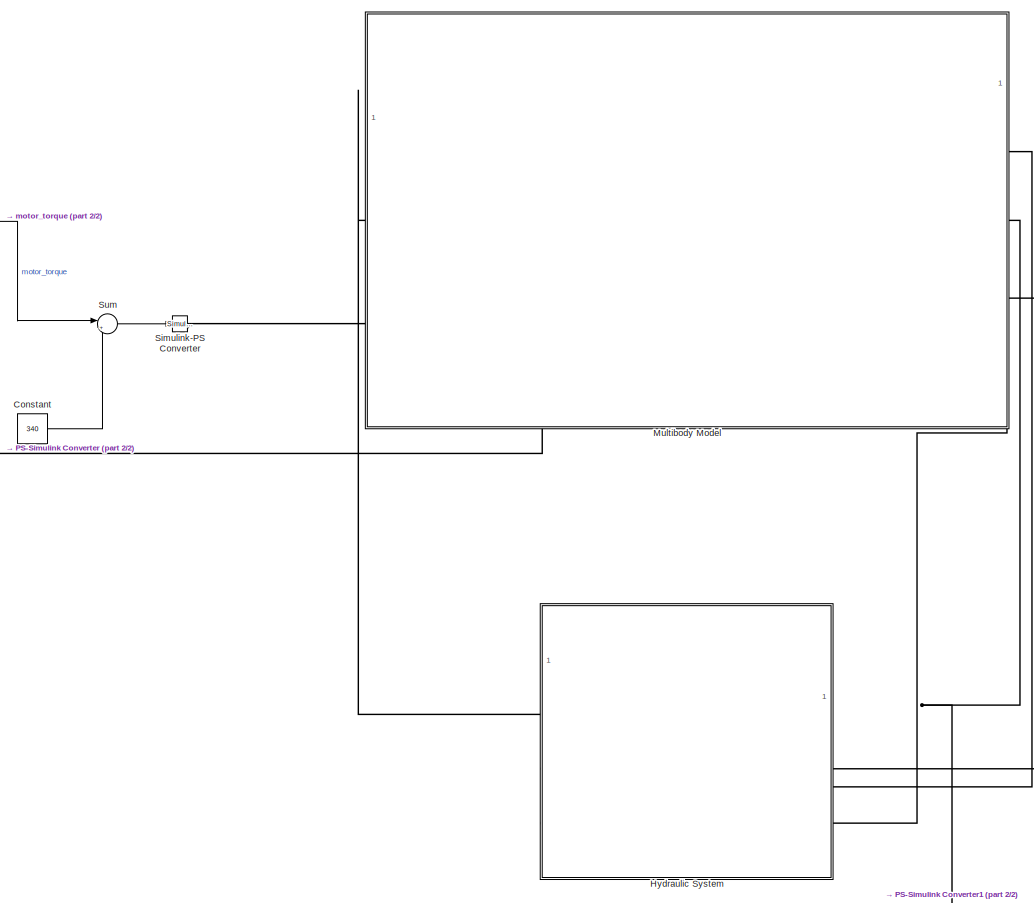
[diagram: root canvas - part 1/2, center side, full height]
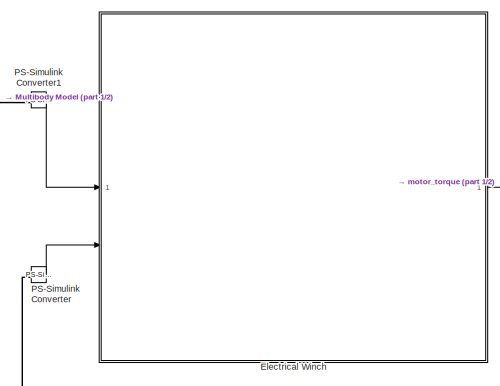
[diagram: root canvas - part 2/2, top left region]
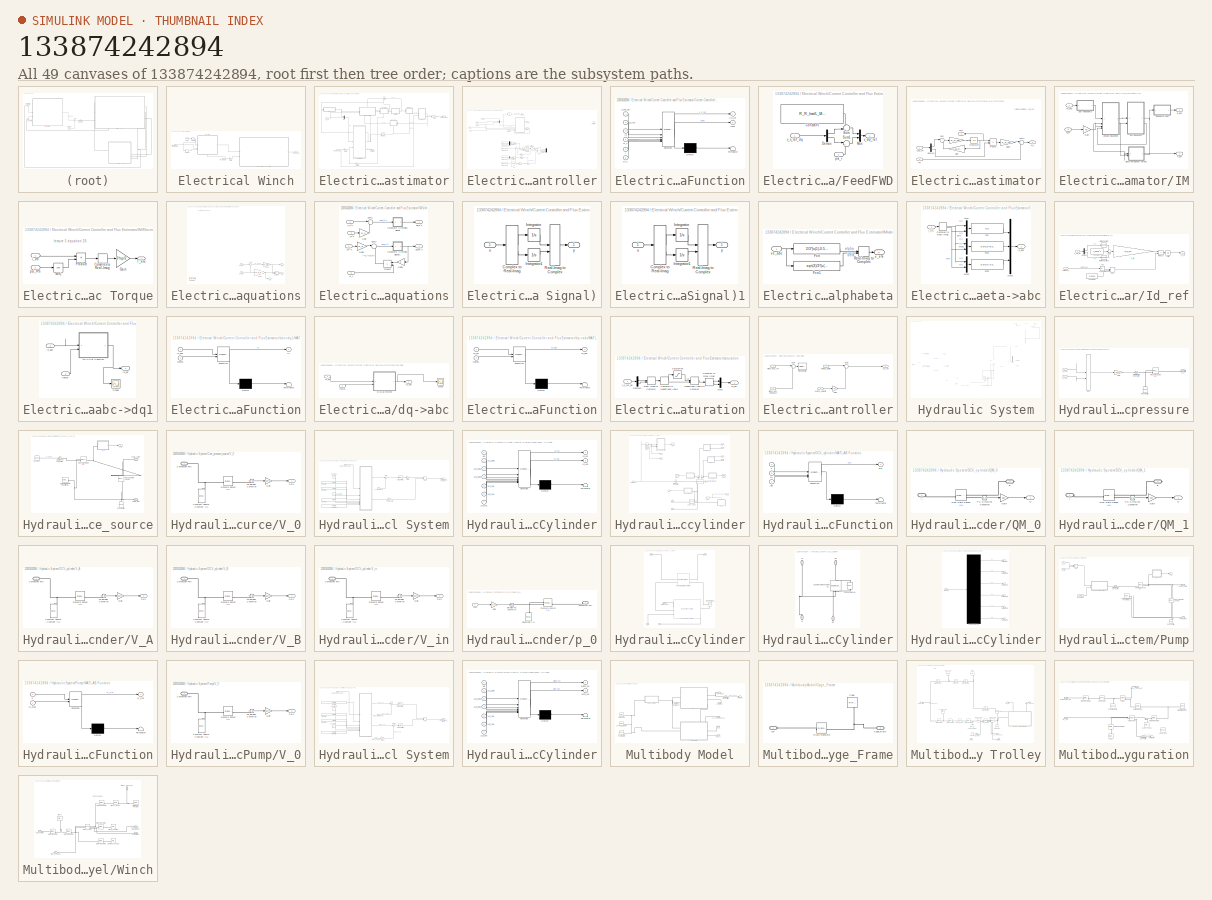
[diagram: thumbnail index - all 49 canvases of the model, root first then tree order]
MODEL slx_133874242894
KIND model
CONFIG AbsTol = auto
CONFIG EnableMultiTasking = off
CONFIG FixedStep = 0.001
CONFIG MaxStep = auto
CONFIG MinStep = auto
CONFIG RelTol = 1e-3
CONFIG SampleTimeConstraint = Unconstrained
CONFIG SolverName = FixedStepAuto
CONFIG StartTime = 0.0
CONFIG StopTime = 25
WORKSPACE source: MATLAB code (in-file)
WORKSPACE Q_max = 130
WORKSPACE m_pl = 1000
WORKSPACE r_d = 0.035
WORKSPACE ig = 5
WORKSPACE J_drum = 0.0006125
WORKSPACE b_hat = 0.001
WORKSPACE np = 2
WORKSPACE P_N = 15000
WORKSPACE n_eff = 0.917
WORKSPACE n_rpm = 1469
WORKSPACE pf = 0.84
WORKSPACE I_N = 29
WORKSPACE Is_In = 8
WORKSPACE T_n = 97.5
WORKSPACE Ti_Tn = 3.1
WORKSPACE Tb_Tn = 3.6
WORKSPACE J_motor = 0.13
WORKSPACE R_R_hat = 0.2052
WORKSPACE X_M_opt = 15.1061
WORKSPACE X_sig_opt = 0.3774
WORKSPACE omega_rN = 307.6666
WORKSPACE omega_N = 314.1593
WORKSPACE omega1 = omega_rN  (= 307.6666)
WORKSPACE L_M_hat = X_M_opt/omega1  (= 0.0490989272154)
WORKSPACE L_sig_hat = X_sig_opt/omega1  (= 0.00122665248682)
WORKSPACE R_s = 0.619
WORKSPACE psi_ref = 20*P_N/(sqrt(2)*pi*np*I_N*n_rpm)
WORKSPACE V_base = 400*sqrt(2)/sqrt(3)
WORKSPACE I_max = I_N*3  (= 87)
WORKSPACE t_r = 1e-3  (= 0.001)
WORKSPACE w_BW = log(9)/t_r
WORKSPACE w_BWs = 0.1*w_BW
WORKSPACE J_hat = m_pl*((r_d/(ig))^2) + J_drum*((1/ig)^2) + J_motor  (= 0.1790245)
WORKSPACE kps = 2*J_hat*w_BWs/(3*np^2*psi_ref)
WORKSPACE kis = w_BWs^2*2*J_hat/(3*np^2*psi_ref)
WORKSPACE Ba = 2*J_hat/(3*np^2*psi_ref)*(w_BWs-b_hat/J_hat)
WORKSPACE kp = w_BW*L_sig_hat
WORKSPACE ki = w_BW^2*L_sig_hat
WORKSPACE Ra = w_BW*L_sig_hat - (R_R_hat + R_s)
WORKSPACE R = R_R_hat + R_s  (= 0.8242)
BLOCK [Constant] Constant
  Value = 340
BLOCK [SubSystem] Electrical Winch
BLOCK [SubSystem] Electrical Winch/Current Controller and Flux Estimator
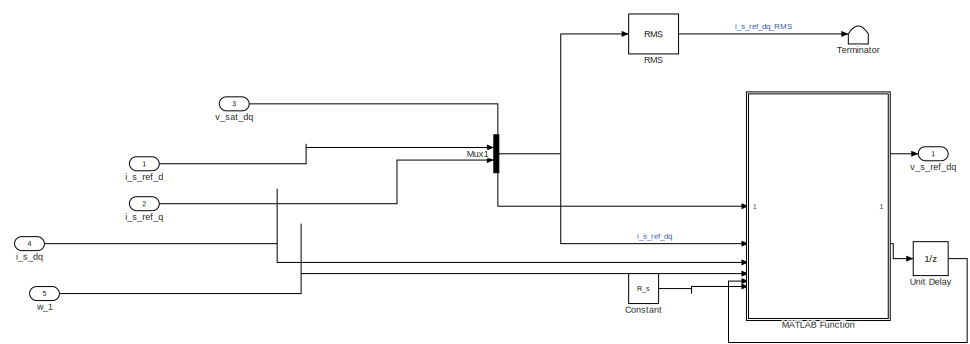
[diagram: Electrical Winch/Current Controller and Flux Estimator/Current Controller - part 1/3, top left region]
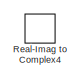
[diagram: Electrical Winch/Current Controller and Flux Estimator/Current Controller - part 2/3, top right region]
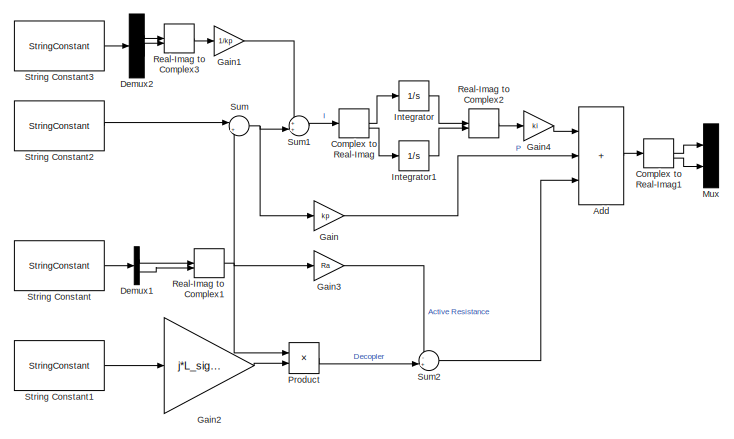
[diagram: Electrical Winch/Current Controller and Flux Estimator/Current Controller - part 3/3, bottom center region]
BLOCK [SubSystem] Electrical Winch/Current Controller and Flux Estimator/Current Controller
  PortSchema = {"entries":[{"content":{"sides":[{"content":{"connectorIds":["In1","In2"]},"type":"ConnectorPlacement.EquallySpacedRectSide","uuid":"97c548b6-6990-4323-a853-1e64e742285c"},{"content":{"connectorIds":["Out1"],"side":"RIGHT"},"type":"ConnectorPlacement.EquallySpacedRectSide","uuid":"cacb7644-0a67-4de4-9bb2-887734fe331a"},{"content":{"connectorIds":["In3"],"side":"TOP"},"type":"ConnectorPlacement.Equ...<+406ch>
BLOCK [Sum] Electrical Winch/Current Controller and Flux Estimator/Current Controller/Add
  Commented = on
  IconShape = rectangular
  Inputs = +++
BLOCK [ComplexToRealImag] Electrical Winch/Current Controller and Flux Estimator/Current Controller/Complex to Real-Imag
  Commented = on
BLOCK [ComplexToRealImag] Electrical Winch/Current Controller and Flux Estimator/Current Controller/Complex to Real-Imag1
  Commented = on
BLOCK [Constant] Electrical Winch/Current Controller and Flux Estimator/Current Controller/Constant
  Value = R_s
BLOCK [Demux] Electrical Winch/Current Controller and Flux Estimator/Current Controller/Demux1
  Commented = on
  Outputs = 2
BLOCK [Demux] Electrical Winch/Current Controller and Flux Estimator/Current Controller/Demux2
  Commented = on
  Outputs = 2
BLOCK [Gain] Electrical Winch/Current Controller and Flux Estimator/Current Controller/Gain
  Commented = on
  Gain = kp
BLOCK [Gain] Electrical Winch/Current Controller and Flux Estimator/Current Controller/Gain1
  Commented = on
  Gain = 1/kp
BLOCK [Gain] Electrical Winch/Current Controller and Flux Estimator/Current Controller/Gain2
  Commented = on
  Gain = j*L_sig_hat
BLOCK [Gain] Electrical Winch/Current Controller and Flux Estimator/Current Controller/Gain3
  Commented = on
  Gain = Ra
BLOCK [Gain] Electrical Winch/Current Controller and Flux Estimator/Current Controller/Gain4
  Commented = on
  Gain = ki
BLOCK [Integrator] Electrical Winch/Current Controller and Flux Estimator/Current Controller/Integrator
  Commented = on
BLOCK [Integrator] Electrical Winch/Current Controller and Flux Estimator/Current Controller/Integrator1
  Commented = on
BLOCK [SubSystem] Electrical Winch/Current Controller and Flux Estimator/Current Controller/MATLAB Function
  ErrorFcn = Stateflow.Translate.translate
  PermitHierarchicalResolution = ExplicitOnly
  SFBlockType = MATLAB Function
  TreatAsAtomicUnit = on
BLOCK [Demux] Electrical Winch/Current Controller and Flux Estimator/Current Controller/MATLAB Function/ Demux 
  Outputs = 1
BLOCK [S-Function] Electrical Winch/Current Controller and Flux Estimator/Current Controller/MATLAB Function/ SFunction 
  EnableBusSupport = on
  FunctionName = sf_sfun
  Parameters = L_sig_hat,R_R_hat,w_BW
  PortCounts = [6 3]
  SFcnIsStateOwnerBlock = off
  SFunctionDeploymentMode = off
  Tag = Stateflow S-Function 6
BLOCK [Terminator] Electrical Winch/Current Controller and Flux Estimator/Current Controller/MATLAB Function/ Terminator 
BLOCK [Inport] Electrical Winch/Current Controller and Flux Estimator/Current Controller/MATLAB Function/I
  Port = 5
BLOCK [Outport] Electrical Winch/Current Controller and Flux Estimator/Current Controller/MATLAB Function/Inew
  Port = 2
BLOCK [Inport] Electrical Winch/Current Controller and Flux Estimator/Current Controller/MATLAB Function/R_s
  Port = 6
BLOCK [Inport] Electrical Winch/Current Controller and Flux Estimator/Current Controller/MATLAB Function/i_s
  Port = 3
BLOCK [Inport] Electrical Winch/Current Controller and Flux Estimator/Current Controller/MATLAB Function/i_s_ref
  Port = 2
BLOCK [Outport] Electrical Winch/Current Controller and Flux Estimator/Current Controller/MATLAB Function/v_s_ref
BLOCK [Inport] Electrical Winch/Current Controller and Flux Estimator/Current Controller/MATLAB Function/v_sat_dq
BLOCK [Inport] Electrical Winch/Current Controller and Flux Estimator/Current Controller/MATLAB Function/w_1
  Port = 4
BLOCK [Mux] Electrical Winch/Current Controller and Flux Estimator/Current Controller/Mux
  Commented = on
  DisplayOption = bar
  Inputs = 2
BLOCK [Mux] Electrical Winch/Current Controller and Flux Estimator/Current Controller/Mux1
  DisplayOption = bar
  Inputs = 2
BLOCK [Product] Electrical Winch/Current Controller and Flux Estimator/Current Controller/Product
  Commented = on
BLOCK [Reference] Electrical Winch/Current Controller and Flux Estimator/Current Controller/RMS  REF=spsRMSLib/RMS
  SourceBlock = spsRMSLib/RMS
  SourceType = RMS
BLOCK [RealImagToComplex] Electrical Winch/Current Controller and Flux Estimator/Current Controller/Real-Imag to Complex1
  Commented = on
BLOCK [RealImagToComplex] Electrical Winch/Current Controller and Flux Estimator/Current Controller/Real-Imag to Complex2
  Commented = on
BLOCK [RealImagToComplex] Electrical Winch/Current Controller and Flux Estimator/Current Controller/Real-Imag to Complex3
  Commented = on
BLOCK [RealImagToComplex] Electrical Winch/Current Controller and Flux Estimator/Current Controller/Real-Imag to Complex4
BLOCK [StringConstant] Electrical Winch/Current Controller and Flux Estimator/Current Controller/String Constant
  Commented = on
  String = i_s_dq
BLOCK [StringConstant] Electrical Winch/Current Controller and Flux Estimator/Current Controller/String Constant1
  Commented = on
  String = w_1
BLOCK [StringConstant] Electrical Winch/Current Controller and Flux Estimator/Current Controller/String Constant2
  Commented = on
  String = i_s_ref_dq
BLOCK [StringConstant] Electrical Winch/Current Controller and Flux Estimator/Current Controller/String Constant3
  Commented = on
  String = v_sat_dq
BLOCK [Sum] Electrical Winch/Current Controller and Flux Estimator/Current Controller/Sum
  Commented = on
  Inputs = |+-
BLOCK [Sum] Electrical Winch/Current Controller and Flux Estimator/Current Controller/Sum1
  Commented = on
  Inputs = ++|
BLOCK [Sum] Electrical Winch/Current Controller and Flux Estimator/Current Controller/Sum2
  Commented = on
  Inputs = -+|
BLOCK [Terminator] Electrical Winch/Current Controller and Flux Estimator/Current Controller/Terminator
BLOCK [UnitDelay] Electrical Winch/Current Controller and Flux Estimator/Current Controller/Unit Delay
  HasFrameUpgradeWarning = on
  SampleTime = -1
BLOCK [Inport] Electrical Winch/Current Controller and Flux Estimator/Current Controller/i_s_dq
  Port = 4
BLOCK [Inport] Electrical Winch/Current Controller and Flux Estimator/Current Controller/i_s_ref_d
BLOCK [Inport] Electrical Winch/Current Controller and Flux Estimator/Current Controller/i_s_ref_q
  Port = 2
BLOCK [Outport] Electrical Winch/Current Controller and Flux Estimator/Current Controller/v_s_ref_dq
  PortDimensions = 2
BLOCK [Inport] Electrical Winch/Current Controller and Flux Estimator/Current Controller/v_sat_dq
  Port = 3
BLOCK [Inport] Electrical Winch/Current Controller and Flux Estimator/Current Controller/w_1
  Port = 5
BLOCK [SubSystem] Electrical Winch/Current Controller and Flux Estimator/FeedFWD
  AttributesFormatString = %<MinAlgLoopOccurrences>
  PortSchema = {"entries":[{"content":{"sides":[{"content":{"connectorIds":["In1"]},"type":"ConnectorPlacement.EquallySpacedRectSide","uuid":"8794a64f-49ba-4da5-9b58-fd7208420cfd"},{"content":{"connectorIds":["Out1"],"side":"RIGHT"},"type":"ConnectorPlacement.EquallySpacedRectSide","uuid":"2b8697f1-b735-400e-94f4-d8410b9cec93"},{"content":{"connectorIds":[],"side":"TOP"},"type":"ConnectorPlacement.EquallySpacedR...<+389ch>
BLOCK [Constant] Electrical Winch/Current Controller and Flux Estimator/FeedFWD/Constant
  Value = R_R_hat/L_M_hat * psi_ref
BLOCK [Demux] Electrical Winch/Current Controller and Flux Estimator/FeedFWD/Demux
  Outputs = 2
BLOCK [Mux] Electrical Winch/Current Controller and Flux Estimator/FeedFWD/Mux
  DisplayOption = bar
  Inputs = 2
BLOCK [Sum] Electrical Winch/Current Controller and Flux Estimator/FeedFWD/Sum
  Inputs = -+|
BLOCK [Sum] Electrical Winch/Current Controller and Flux Estimator/FeedFWD/Sum1
  Inputs = |++
BLOCK [Inport] Electrical Winch/Current Controller and Flux Estimator/FeedFWD/psi_r
  Port = 2
BLOCK [Outport] Electrical Winch/Current Controller and Flux Estimator/FeedFWD/v_dq_ref
BLOCK [Inport] Electrical Winch/Current Controller and Flux Estimator/FeedFWD/v_s_ref_dq
BLOCK [SubSystem] Electrical Winch/Current Controller and Flux Estimator/Flux Estimator
BLOCK [Demux] Electrical Winch/Current Controller and Flux Estimator/Flux Estimator/Demux1
  Outputs = 2
BLOCK [Gain] Electrical Winch/Current Controller and Flux Estimator/Flux Estimator/Gain
  Gain = 1/L_M_hat
BLOCK [Gain] Electrical Winch/Current Controller and Flux Estimator/Flux Estimator/Gain1
  Gain = R_R_hat
BLOCK [Gain] Electrical Winch/Current Controller and Flux Estimator/Flux Estimator/Gain2
  Gain = R_R_hat
BLOCK [Integrator] Electrical Winch/Current Controller and Flux Estimator/Flux Estimator/Integrator
  InitialCondition = psi_ref
BLOCK [Product] Electrical Winch/Current Controller and Flux Estimator/Flux Estimator/Product
  Inputs = /*
BLOCK [Sum] Electrical Winch/Current Controller and Flux Estimator/Flux Estimator/Sum
  Inputs = |+-
BLOCK [Sum] Electrical Winch/Current Controller and Flux Estimator/Flux Estimator/Sum1
  Inputs = |++
BLOCK [Inport] Electrical Winch/Current Controller and Flux Estimator/Flux Estimator/i_dq_ref
BLOCK [Outport] Electrical Winch/Current Controller and Flux Estimator/Flux Estimator/psi_r
  NameLocation = top
  Port = 2
BLOCK [Outport] Electrical Winch/Current Controller and Flux Estimator/Flux Estimator/w_1
BLOCK [Inport] Electrical Winch/Current Controller and Flux Estimator/Flux Estimator/w_r
  Port = 2
BLOCK [Gain] Electrical Winch/Current Controller and Flux Estimator/Gain
  Gain = np
BLOCK [Gain] Electrical Winch/Current Controller and Flux Estimator/Gain1
  Gain = psi_ref
BLOCK [Gain] Electrical Winch/Current Controller and Flux Estimator/Gain2
BLOCK [SubSystem] Electrical Winch/Current Controller and Flux Estimator/IM
BLOCK [SubSystem] Electrical Winch/Current Controller and Flux Estimator/IM/Electromagnetic Torque
BLOCK [ComplexToRealImag] Electrical Winch/Current Controller and Flux Estimator/IM/Electromagnetic Torque/Complex to Real-Imag
  Output = Imag
BLOCK [Gain] Electrical Winch/Current Controller and Flux Estimator/IM/Electromagnetic Torque/Gain
  Gain = 3*np/2
BLOCK [Product] Electrical Winch/Current Controller and Flux Estimator/IM/Electromagnetic Torque/Product
BLOCK [Outport] Electrical Winch/Current Controller and Flux Estimator/IM/Electromagnetic Torque/T_em
BLOCK [Math] Electrical Winch/Current Controller and Flux Estimator/IM/Electromagnetic Torque/conj
  Operator = conj
BLOCK [Inport] Electrical Winch/Current Controller and Flux Estimator/IM/Electromagnetic Torque/i_s^s
BLOCK [Inport] Electrical Winch/Current Controller and Flux Estimator/IM/Electromagnetic Torque/psi_R^s
  Port = 2
BLOCK [SubSystem] Electrical Winch/Current Controller and Flux Estimator/IM/Flux Equations
BLOCK [Constant] Electrical Winch/Current Controller and Flux Estimator/IM/Flux Equations/Constant
  Value = L_M_hat
BLOCK [Gain] Electrical Winch/Current Controller and Flux Estimator/IM/Flux Equations/Eq(16)
  Gain = 1/L_sig_hat
BLOCK [Gain] Electrical Winch/Current Controller and Flux Estimator/IM/Flux Equations/Gain1
  Gain = 1/L_M_hat
BLOCK [Outport] Electrical Winch/Current Controller and Flux Estimator/IM/Flux Equations/I_M
  Port = 3
BLOCK [Sum] Electrical Winch/Current Controller and Flux Estimator/IM/Flux Equations/Subtract
  IconShape = rectangular
  Inputs = +-
BLOCK [Sum] Electrical Winch/Current Controller and Flux Estimator/IM/Flux Equations/Sum
  Inputs = |+-
BLOCK [Outport] Electrical Winch/Current Controller and Flux Estimator/IM/Flux Equations/i_R^s
  Port = 2
BLOCK [Outport] Electrical Winch/Current Controller and Flux Estimator/IM/Flux Equations/i_s^s
BLOCK [Inport] Electrical Winch/Current Controller and Flux Estimator/IM/Flux Equations/psi_R^s
  Port = 2
BLOCK [Inport] Electrical Winch/Current Controller and Flux Estimator/IM/Flux Equations/psi_s^s
BLOCK [Gain] Electrical Winch/Current Controller and Flux Estimator/IM/Gain
  Gain = np
  OutDataTypeStr = Inherit: Same as input
  ParamDataTypeStr = Inherit: Same as input
  SaturateOnIntegerOverflow = on
BLOCK [Outport] Electrical Winch/Current Controller and Flux Estimator/IM/T_em
  Port = 2
BLOCK [SubSystem] Electrical Winch/Current Controller and Flux Estimator/IM/Voltage Equations
BLOCK [Gain] Electrical Winch/Current Controller and Flux Estimator/IM/Voltage Equations/Gain
  Gain = R_s
BLOCK [Gain] Electrical Winch/Current Controller and Flux Estimator/IM/Voltage Equations/Gain1
  Gain = R_R
BLOCK [Gain] Electrical Winch/Current Controller and Flux Estimator/IM/Voltage Equations/Gain2
  Gain = 1j
BLOCK [SubSystem] Electrical Winch/Current Controller and Flux Estimator/IM/Voltage Equations/Integrator (Complex Signal)
BLOCK [ComplexToRealImag] Electrical Winch/Current Controller and Flux Estimator/IM/Voltage Equations/Integrator (Complex Signal)/Complex to Real-Imag
BLOCK [Integrator] Electrical Winch/Current Controller and Flux Estimator/IM/Voltage Equations/Integrator (Complex Signal)/Integrator
  InitialCondition = psi_ref
BLOCK [Integrator] Electrical Winch/Current Controller and Flux Estimator/IM/Voltage Equations/Integrator (Complex Signal)/Integrator1
BLOCK [RealImagToComplex] Electrical Winch/Current Controller and Flux Estimator/IM/Voltage Equations/Integrator (Complex Signal)/Real-Imag to Complex
BLOCK [Inport] Electrical Winch/Current Controller and Flux Estimator/IM/Voltage Equations/Integrator (Complex Signal)/u
BLOCK [Outport] Electrical Winch/Current Controller and Flux Estimator/IM/Voltage Equations/Integrator (Complex Signal)/y
BLOCK [SubSystem] Electrical Winch/Current Controller and Flux Estimator/IM/Voltage Equations/Integrator (Complex Signal)1
BLOCK [ComplexToRealImag] Electrical Winch/Current Controller and Flux Estimator/IM/Voltage Equations/Integrator (Complex Signal)1/Complex to Real-Imag
BLOCK [Integrator] Electrical Winch/Current Controller and Flux Estimator/IM/Voltage Equations/Integrator (Complex Signal)1/Integrator
  InitialCondition = psi_ref
BLOCK [Integrator] Electrical Winch/Current Controller and Flux Estimator/IM/Voltage Equations/Integrator (Complex Signal)1/Integrator1
BLOCK [RealImagToComplex] Electrical Winch/Current Controller and Flux Estimator/IM/Voltage Equations/Integrator (Complex Signal)1/Real-Imag to Complex
BLOCK [Inport] Electrical Winch/Current Controller and Flux Estimator/IM/Voltage Equations/Integrator (Complex Signal)1/u
BLOCK [Outport] Electrical Winch/Current Controller and Flux Estimator/IM/Voltage Equations/Integrator (Complex Signal)1/y
BLOCK [Product] Electrical Winch/Current Controller and Flux Estimator/IM/Voltage Equations/Product
  RndMeth = Zero
BLOCK [Sum] Electrical Winch/Current Controller and Flux Estimator/IM/Voltage Equations/Sum1
  Inputs = |+-
BLOCK [Sum] Electrical Winch/Current Controller and Flux Estimator/IM/Voltage Equations/Sum2
  Inputs = |-+
BLOCK [Inport] Electrical Winch/Current Controller and Flux Estimator/IM/Voltage Equations/i_R^s
  Port = 4
BLOCK [Inport] Electrical Winch/Current Controller and Flux Estimator/IM/Voltage Equations/i_s^s
  Port = 2
BLOCK [Outport] Electrical Winch/Current Controller and Flux Estimator/IM/Voltage Equations/psi_R^s
  Port = 2
BLOCK [Outport] Electrical Winch/Current Controller and Flux Estimator/IM/Voltage Equations/psi_s^s
BLOCK [Inport] Electrical Winch/Current Controller and Flux Estimator/IM/Voltage Equations/v_s^s
BLOCK [Inport] Electrical Winch/Current Controller and Flux Estimator/IM/Voltage Equations/w_r
  Port = 3
BLOCK [SubSystem] Electrical Winch/Current Controller and Flux Estimator/IM/abc->alphabeta
BLOCK [Fcn] Electrical Winch/Current Controller and Flux Estimator/IM/abc->alphabeta/Fcn
  Expr = 2/3*(u(1)-0.5*u(2)-0.5*u(3))
BLOCK [Fcn] Electrical Winch/Current Controller and Flux Estimator/IM/abc->alphabeta/Fcn1
  Expr = sqrt(3)/3*(u(2)-u(3))
BLOCK [RealImagToComplex] Electrical Winch/Current Controller and Flux Estimator/IM/abc->alphabeta/Real-Imag to Complex
BLOCK [Outport] Electrical Winch/Current Controller and Flux Estimator/IM/abc->alphabeta/v_s^s
BLOCK [Inport] Electrical Winch/Current Controller and Flux Estimator/IM/abc->alphabeta/vs_abc
BLOCK [SubSystem] Electrical Winch/Current Controller and Flux Estimator/IM/alphabeta->abc
BLOCK [ComplexToRealImag] Electrical Winch/Current Controller and Flux Estimator/IM/alphabeta->abc/Complex to Real-Imag
BLOCK [Fcn] Electrical Winch/Current Controller and Flux Estimator/IM/alphabeta->abc/Fcn
  Expr = u(1)
BLOCK [Fcn] Electrical Winch/Current Controller and Flux Estimator/IM/alphabeta->abc/Fcn1
  Expr = -0.5*u(1)+0.5*sqrt(3)*u(2)
BLOCK [Fcn] Electrical Winch/Current Controller and Flux Estimator/IM/alphabeta->abc/Fcn2
  Expr = -0.5*u(1)-0.5*sqrt(3)*u(2)
BLOCK [Mux] Electrical Winch/Current Controller and Flux Estimator/IM/alphabeta->abc/Mux
  DisplayOption = bar
  Inputs = 2
BLOCK [Mux] Electrical Winch/Current Controller and Flux Estimator/IM/alphabeta->abc/Mux1
  DisplayOption = bar
  Inputs = 2
BLOCK [Mux] Electrical Winch/Current Controller and Flux Estimator/IM/alphabeta->abc/Mux2
  DisplayOption = bar
  Inputs = 2
BLOCK [Mux] Electrical Winch/Current Controller and Flux Estimator/IM/alphabeta->abc/Mux3
  DisplayOption = bar
  Inputs = 3
BLOCK [Inport] Electrical Winch/Current Controller and Flux Estimator/IM/alphabeta->abc/i_s^s
BLOCK [Outport] Electrical Winch/Current Controller and Flux Estimator/IM/alphabeta->abc/is_abc
BLOCK [Outport] Electrical Winch/Current Controller and Flux Estimator/IM/is_abc
BLOCK [Inport] Electrical Winch/Current Controller and Flux Estimator/IM/vs_abc
BLOCK [Inport] Electrical Winch/Current Controller and Flux Estimator/IM/w_m
  Port = 2
BLOCK [SubSystem] Electrical Winch/Current Controller and Flux Estimator/Id_ref
BLOCK [Abs] Electrical Winch/Current Controller and Flux Estimator/Id_ref/Abs
  SaturateOnIntegerOverflow = off
BLOCK [Constant] Electrical Winch/Current Controller and Flux Estimator/Id_ref/Constant
  Value = V_base^2
BLOCK [Constant] Electrical Winch/Current Controller and Flux Estimator/Id_ref/Constant2
  Value = 2*pi*50
BLOCK [Demux] Electrical Winch/Current Controller and Flux Estimator/Id_ref/Demux
  Outputs = 2
BLOCK [Integrator] Electrical Winch/Current Controller and Flux Estimator/Id_ref/Limits
  InitialCondition = psi_ref/L_M_hat
  LimitOutput = on
  LowerSaturationLimit = 0.1*psi_ref/L_M_hat
  UpperSaturationLimit = psi_ref/L_M_hat
BLOCK [Math] Electrical Winch/Current Controller and Flux Estimator/Id_ref/Math Function
  Operator = magnitude^2
BLOCK [Math] Electrical Winch/Current Controller and Flux Estimator/Id_ref/Math Function1
  Operator = magnitude^2
BLOCK [MinMax] Electrical Winch/Current Controller and Flux Estimator/Id_ref/Max
  Function = max
  Inputs = 2
BLOCK [Product] Electrical Winch/Current Controller and Flux Estimator/Id_ref/Product
  Inputs = */
BLOCK [Sum] Electrical Winch/Current Controller and Flux Estimator/Id_ref/Sum
  Inputs = -+-
BLOCK [Outport] Electrical Winch/Current Controller and Flux Estimator/Id_ref/i_d_ref
BLOCK [Gain] Electrical Winch/Current Controller and Flux Estimator/Id_ref/k_fw
  Gain = R_R_hat/((L_sig_hat^2)*V_base)
BLOCK [Inport] Electrical Winch/Current Controller and Flux Estimator/Id_ref/omega_1
  Port = 2
BLOCK [Inport] Electrical Winch/Current Controller and Flux Estimator/Id_ref/v_dq_ref
BLOCK [Integrator] Electrical Winch/Current Controller and Flux Estimator/Integrator
BLOCK [Outport] Electrical Winch/Current Controller and Flux Estimator/Motor_Torque
BLOCK [Mux] Electrical Winch/Current Controller and Flux Estimator/Mux
  DisplayOption = bar
  Inputs = 2
BLOCK [Sum] Electrical Winch/Current Controller and Flux Estimator/Sum
  Inputs = |+-
  NameLocation = top
BLOCK [Terminator] Electrical Winch/Current Controller and Flux Estimator/Terminator
BLOCK [SubSystem] Electrical Winch/Current Controller and Flux Estimator/abc->dq1
  NameLocation = top
  PortSchema = {"entries":[{"content":{"sides":[{"content":{"connectorIds":["In1"]},"type":"ConnectorPlacement.EquallySpacedRectSide","uuid":"c3863cce-4a98-427c-9e63-89298f679a84"},{"content":{"connectorIds":["Out1"],"side":"RIGHT"},"type":"ConnectorPlacement.EquallySpacedRectSide","uuid":"ae3c4991-ab62-4114-9bee-e9a7348a29ce"},{"content":{"side":"TOP"},"type":"ConnectorPlacement.EquallySpacedRectSide","uuid":"f...<+371ch>
BLOCK [SubSystem] Electrical Winch/Current Controller and Flux Estimator/abc->dq1/MATLAB Function
  ErrorFcn = Stateflow.Translate.translate
  PermitHierarchicalResolution = ExplicitOnly
  SFBlockType = MATLAB Function
  TreatAsAtomicUnit = on
BLOCK [Demux] Electrical Winch/Current Controller and Flux Estimator/abc->dq1/MATLAB Function/ Demux 
  Outputs = 1
BLOCK [S-Function] Electrical Winch/Current Controller and Flux Estimator/abc->dq1/MATLAB Function/ SFunction 
  EnableBusSupport = on
  FunctionName = sf_sfun
  PortCounts = [2 2]
  SFcnIsStateOwnerBlock = off
  SFunctionDeploymentMode = off
  Tag = Stateflow S-Function 7
BLOCK [Terminator] Electrical Winch/Current Controller and Flux Estimator/abc->dq1/MATLAB Function/ Terminator 
BLOCK [Outport] Electrical Winch/Current Controller and Flux Estimator/abc->dq1/MATLAB Function/is
BLOCK [Inport] Electrical Winch/Current Controller and Flux Estimator/abc->dq1/MATLAB Function/is_abc
BLOCK [Inport] Electrical Winch/Current Controller and Flux Estimator/abc->dq1/MATLAB Function/thetas
  Port = 2
BLOCK [Scope] Electrical Winch/Current Controller and Flux Estimator/abc->dq1/Scope
  Floating = off
  NumInputPorts = 1
  ScopeSpecificationString = Simulink.scopes.TimeScopeBlockCfg('CurrentConfiguration', extmgr.ConfigurationSet(extmgr.Configuration('Core','General UI',true),extmgr.Configuration('Core','Source UI',true),extmgr.Configuration('Sources','WiredSimulink',true,'DataLoggingVariableName','ScopeData2'),extmgr.Configuration('Visuals','Time Domain',true,'SerializedDisplays',{struct('MinYLimReal','-294.45962','MaxYLimReal','234.31066','...<+1410ch>
BLOCK [Inport] Electrical Winch/Current Controller and Flux Estimator/abc->dq1/is_abc
BLOCK [Outport] Electrical Winch/Current Controller and Flux Estimator/abc->dq1/is_dq
BLOCK [Inport] Electrical Winch/Current Controller and Flux Estimator/abc->dq1/thetas
  Port = 2
BLOCK [SubSystem] Electrical Winch/Current Controller and Flux Estimator/dq->abc
  NameLocation = top
  PortSchema = {"entries":[{"content":{"sides":[{"content":{"connectorIds":["In1"]},"type":"ConnectorPlacement.EquallySpacedRectSide","uuid":"c3863cce-4a98-427c-9e63-89298f679a84"},{"content":{"connectorIds":["Out1"],"side":"RIGHT"},"type":"ConnectorPlacement.EquallySpacedRectSide","uuid":"ae3c4991-ab62-4114-9bee-e9a7348a29ce"},{"content":{"connectorIds":[],"side":"TOP"},"type":"ConnectorPlacement.EquallySpacedR...<+389ch>
BLOCK [SubSystem] Electrical Winch/Current Controller and Flux Estimator/dq->abc/MATLAB Function
  ErrorFcn = Stateflow.Translate.translate
  PermitHierarchicalResolution = ExplicitOnly
  SFBlockType = MATLAB Function
  TreatAsAtomicUnit = on
BLOCK [Demux] Electrical Winch/Current Controller and Flux Estimator/dq->abc/MATLAB Function/ Demux 
  Outputs = 1
BLOCK [S-Function] Electrical Winch/Current Controller and Flux Estimator/dq->abc/MATLAB Function/ SFunction 
  EnableBusSupport = on
  FunctionName = sf_sfun
  PortCounts = [2 2]
  SFcnIsStateOwnerBlock = off
  SFunctionDeploymentMode = off
  Tag = Stateflow S-Function 8
BLOCK [Terminator] Electrical Winch/Current Controller and Flux Estimator/dq->abc/MATLAB Function/ Terminator 
BLOCK [Inport] Electrical Winch/Current Controller and Flux Estimator/dq->abc/MATLAB Function/thetas
  Port = 2
BLOCK [Outport] Electrical Winch/Current Controller and Flux Estimator/dq->abc/MATLAB Function/vs_abc
BLOCK [Inport] Electrical Winch/Current Controller and Flux Estimator/dq->abc/MATLAB Function/vs_dq
BLOCK [Scope] Electrical Winch/Current Controller and Flux Estimator/dq->abc/Scope
  Floating = off
  NumInputPorts = 1
  ScopeSpecificationString = Simulink.scopes.TimeScopeBlockCfg('CurrentConfiguration', extmgr.ConfigurationSet(extmgr.Configuration('Core','General UI',true),extmgr.Configuration('Core','Source UI',true),extmgr.Configuration('Sources','WiredSimulink',true,'DataLoggingVariableName','ScopeData1'),extmgr.Configuration('Visuals','Time Domain',true,'SerializedDisplays',{struct('MinYLimReal','-79.19571','MaxYLimReal','146.12166','Y...<+1445ch>
BLOCK [Inport] Electrical Winch/Current Controller and Flux Estimator/dq->abc/thetas
  Port = 2
BLOCK [Outport] Electrical Winch/Current Controller and Flux Estimator/dq->abc/vs_abc
BLOCK [Inport] Electrical Winch/Current Controller and Flux Estimator/dq->abc/vs_dq
BLOCK [Inport] Electrical Winch/Current Controller and Flux Estimator/i_q_ref
BLOCK [Inport] Electrical Winch/Current Controller and Flux Estimator/omega_motor
  Port = 2
BLOCK [SubSystem] Electrical Winch/Current Controller and Flux Estimator/saturation
BLOCK [ComplexToMagnitudeAngle] Electrical Winch/Current Controller and Flux Estimator/saturation/Complex to Magnitude-Angle
BLOCK [ComplexToRealImag] Electrical Winch/Current Controller and Flux Estimator/saturation/Complex to Real-Imag
BLOCK [Demux] Electrical Winch/Current Controller and Flux Estimator/saturation/Demux1
  Outputs = 2
BLOCK [MagnitudeAngleToComplex] Electrical Winch/Current Controller and Flux Estimator/saturation/Magnitude-Angle to Complex
BLOCK [Mux] Electrical Winch/Current Controller and Flux Estimator/saturation/Mux1
  DisplayOption = bar
  Inputs = 2
BLOCK [RealImagToComplex] Electrical Winch/Current Controller and Flux Estimator/saturation/Real-Imag to Complex
BLOCK [Saturate] Electrical Winch/Current Controller and Flux Estimator/saturation/Saturation
  LowerLimit = 0
  UpperLimit = 400*sqrt(2)*sqrt(3)
BLOCK [Inport] Electrical Winch/Current Controller and Flux Estimator/saturation/v_s_ref_dq
BLOCK [Outport] Electrical Winch/Current Controller and Flux Estimator/saturation/vs_dq
BLOCK [Derivative] Electrical Winch/Derivative
BLOCK [Gain] Electrical Winch/Gain
  Gain = 1/5
BLOCK [Outport] Electrical Winch/Motor_Torque
BLOCK [SubSystem] Electrical Winch/PI Controller
  PortSchema = {"entries":[{"content":{"sides":[{"content":{"connectorIds":["In1","In2","In3"]},"type":"ConnectorPlacement.EquallySpacedRectSide","uuid":"929bc9c7-942c-41cc-8ba3-5302749e69e7"},{"content":{"connectorIds":["Out1"],"side":"RIGHT"},"type":"ConnectorPlacement.EquallySpacedRectSide","uuid":"32fb5074-6811-40b3-9bed-39c06266804a"},{"content":{"side":"TOP"},"type":"ConnectorPlacement.EquallySpacedRectSid...<+383ch>
BLOCK [Gain] Electrical Winch/PI Controller/Gain
  Gain = 20
BLOCK [Reference] Electrical Winch/PI Controller/PID Controller  REF=slpidlib/PID Controller
  Commented = on
  LibrarySourceBlock = simulink/Continuous/PID Controller
  SourceBlock = slpidlib/PID Controller
  SourceType = PID 1dof
BLOCK [Sum] Electrical Winch/PI Controller/Sum
  Commented = on
  Inputs = |+-
BLOCK [Sum] Electrical Winch/PI Controller/Sum1
  Inputs = |-+
BLOCK [Inport] Electrical Winch/PI Controller/Winch_velocity
  Port = 3
BLOCK [Outport] Electrical Winch/PI Controller/i_q_ref
BLOCK [Inport] Electrical Winch/PI Controller/omega_motor
  Port = 4
BLOCK [Inport] Electrical Winch/PI Controller/winch_pos_feedback
  Port = 2
BLOCK [Inport] Electrical Winch/PI Controller/winch_pos_ref
BLOCK [Reference] Electrical Winch/Ramp  REF=simulink/Sources/Ramp
  SourceBlock = simulink/Sources/Ramp
  SourceType = Ramp
BLOCK [Saturate] Electrical Winch/Saturation
  UpperLimit = 2*pi
BLOCK [Inport] Electrical Winch/omega_motor
BLOCK [Inport] Electrical Winch/winch_pos_feedback
  Port = 2
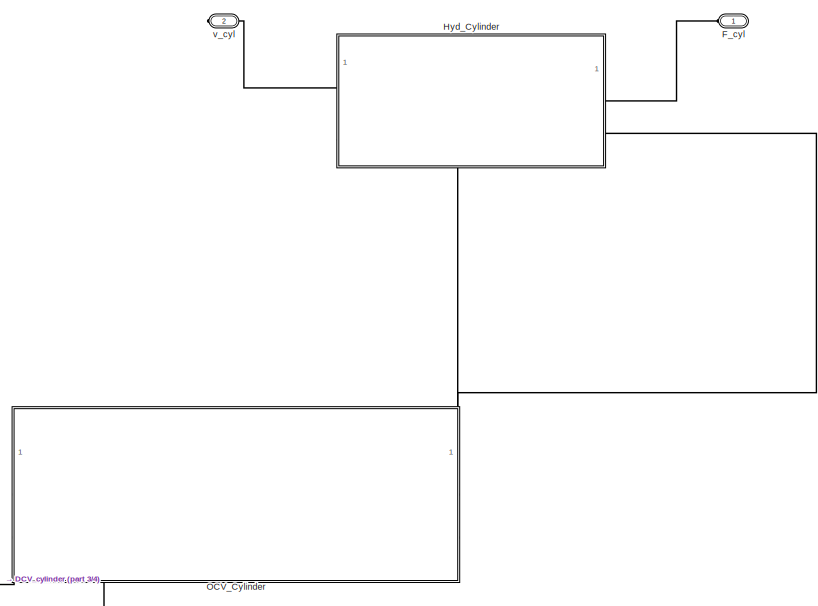
[diagram: Hydraulic System - part 1/4, top right region]
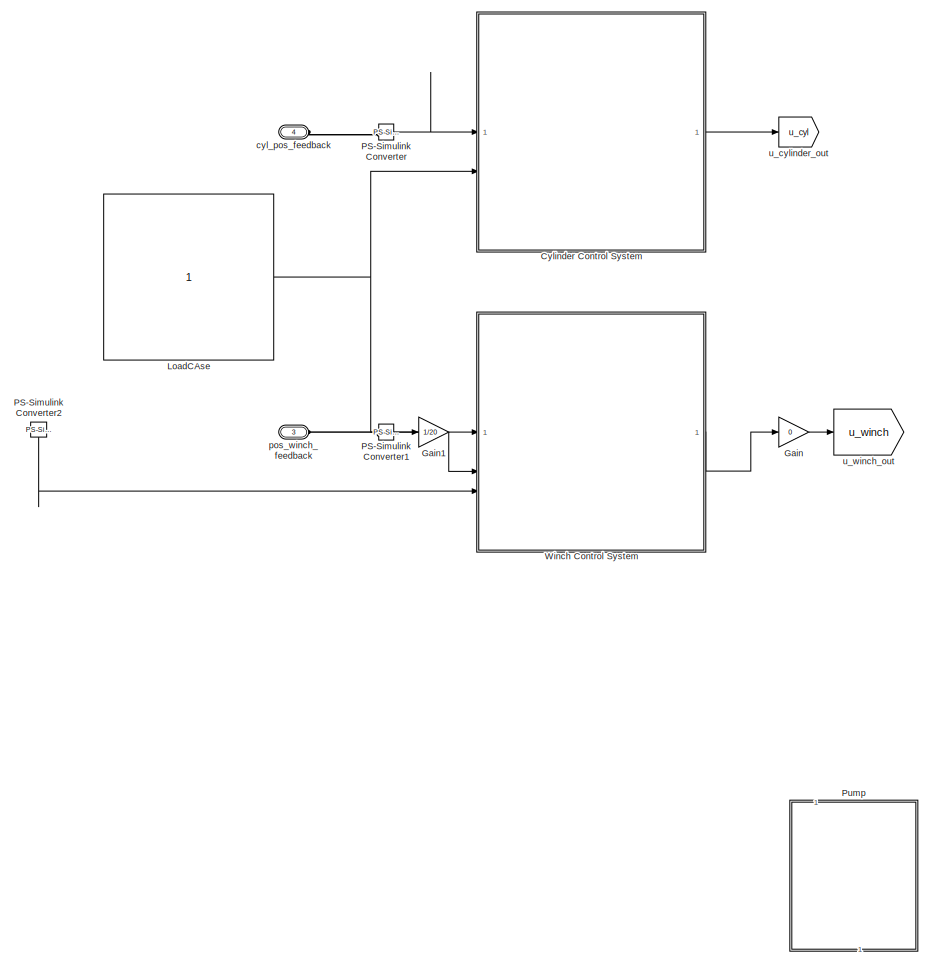
[diagram: Hydraulic System - part 2/4, middle left region]
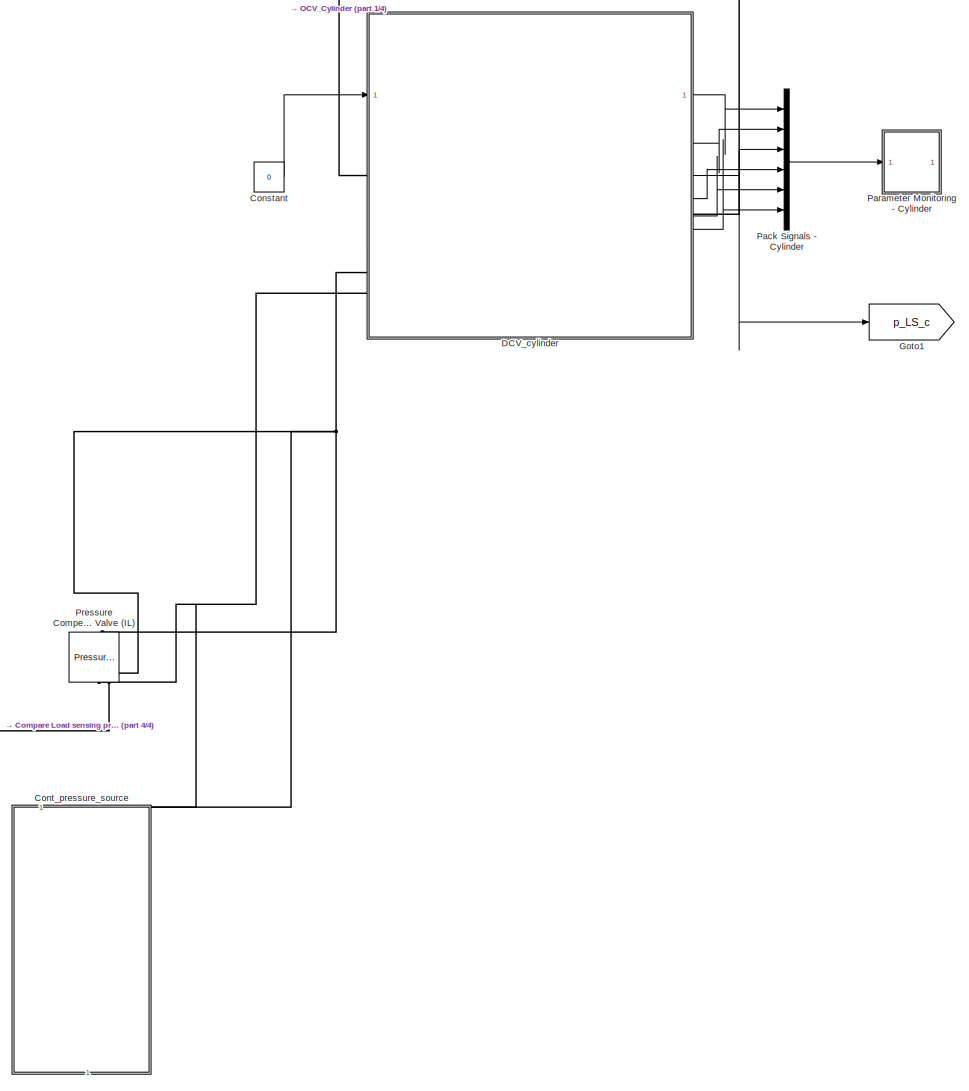
[diagram: Hydraulic System - part 3/4, bottom right region]
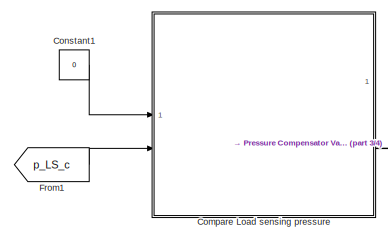
[diagram: Hydraulic System - part 4/4, bottom center region]
BLOCK [SubSystem] Hydraulic System
  PortSchema = {"entries":[{"content":{"sides":[{"content":{"connectorIds":["LConn1"]},"type":"ConnectorPlacement.EquallySpacedRectSide","uuid":"d2f2f53f-a514-4115-95b6-c5edd4e5b59e"},{"content":{"connectorIds":["RConn1"],"side":"RIGHT"},"type":"ConnectorPlacement.EquallySpacedRectSide","uuid":"dca80462-6e47-4adb-ad12-c00c4b76a834"},{"content":{"connectorIds":["LConn2","LConn3"],"side":"TOP"},"type":"ConnectorPl...<+262ch>
BLOCK [SubSystem] Hydraulic System/Compare Load sensing pressure
BLOCK [Gain] Hydraulic System/Compare Load sensing pressure/Gain
  Gain = 10^5
BLOCK [MinMax] Hydraulic System/Compare Load sensing pressure/Max
  Function = max
  Inputs = 2
BLOCK [Reference] Hydraulic System/Compare Load sensing pressure/Pressure Source (IL)  REF=fl_lib/Isothermal Liquid/Sources/Pressure Source (IL)
  SourceBlock = fl_lib/Isothermal Liquid/Sources/Pressure Source (IL)
  SourceType = Pressure Source (IL)
BLOCK [Reference] Hydraulic System/Compare Load sensing pressure/Reservoir (IL)  REF=fl_lib/Isothermal Liquid/Elements/Reservoir (IL)
  NameLocation = right
  SourceBlock = fl_lib/Isothermal Liquid/Elements/Reservoir (IL)
  SourceType = Reservoir (IL)
BLOCK [Reference] Hydraulic System/Compare Load sensing pressure/Simulink-PS Converter  REF=nesl_utility/Simulink-PS
Converter
  SourceBlock = nesl_utility/Simulink-PS\nConverter
  SourceType = Simulink-PS\nConverter
BLOCK [PMIOPort] Hydraulic System/Compare Load sensing pressure/p_0
  NameLocation = top
  Side = Right
BLOCK [Inport] Hydraulic System/Compare Load sensing pressure/p_LS0
BLOCK [Inport] Hydraulic System/Compare Load sensing pressure/p_LS1
  Port = 2
BLOCK [Constant] Hydraulic System/Constant
  Value = 0
BLOCK [Constant] Hydraulic System/Constant1
  Value = 0
BLOCK [SubSystem] Hydraulic System/Cont_pressure_source
  NameLocation = right
BLOCK [Constant] Hydraulic System/Cont_pressure_source/Constant
  Value = 65e5
BLOCK [Reference] Hydraulic System/Cont_pressure_source/Isothermal Liquid Properties (IL)  REF=fl_lib/Isothermal Liquid/Utilities/Isothermal Liquid
Properties (IL)
  SourceBlock = fl_lib/Isothermal Liquid/Utilities/Isothermal Liquid\nProperties (IL)
  SourceType = Isothermal Liquid\nProperties (IL)
BLOCK [Outport] Hydraulic System/Cont_pressure_source/P_M
BLOCK [Reference] Hydraulic System/Cont_pressure_source/Pressure Relief Valve (IL)  REF=SimscapeFluids_lib/Isothermal Liquid/Valves & Orifices/Pressure Control
Valves/Pressure Relief
Valve (IL)
  NameLocation = left
  SourceBlock = SimscapeFluids_lib/Isothermal Liquid/Valves & Orifices/Pressure Control\nValves/Pressure Relief\nValve (IL)
  SourceType = Pressure Relief\nValve (IL)
BLOCK [Reference] Hydraulic System/Cont_pressure_source/Pressure Source (IL)  REF=fl_lib/Isothermal Liquid/Sources/Pressure Source (IL)
  SourceBlock = fl_lib/Isothermal Liquid/Sources/Pressure Source (IL)
  SourceType = Pressure Source (IL)
BLOCK [PMIOPort] Hydraulic System/Cont_pressure_source/Pump_inlet
  NameLocation = top
  Port = 2
  Side = Left
BLOCK [PMIOPort] Hydraulic System/Cont_pressure_source/Pump_outlet
  NameLocation = top
  Side = Left
BLOCK [Reference] Hydraulic System/Cont_pressure_source/Reservoir (IL)  REF=fl_lib/Isothermal Liquid/Elements/Reservoir (IL)
  NameLocation = right
  SourceBlock = fl_lib/Isothermal Liquid/Elements/Reservoir (IL)
  SourceType = Reservoir (IL)
BLOCK [Reference] Hydraulic System/Cont_pressure_source/Simulink-PS Converter  REF=nesl_utility/Simulink-PS
Converter
  SourceBlock = nesl_utility/Simulink-PS\nConverter
  SourceType = Simulink-PS\nConverter
BLOCK [SubSystem] Hydraulic System/Cont_pressure_source/V_0
BLOCK [PMIOPort] Hydraulic System/Cont_pressure_source/V_0/Connection Port
  Side = Left
BLOCK [Reference] Hydraulic System/Cont_pressure_source/V_0/Constant Volume Chamber (IL)  REF=fl_lib/Isothermal Liquid/Elements/Constant Volume
Chamber (IL)
  NameLocation = right
  SourceBlock = fl_lib/Isothermal Liquid/Elements/Constant Volume\nChamber (IL)
  SourceType = Constant Volume\nChamber (IL)
BLOCK [Gain] Hydraulic System/Cont_pressure_source/V_0/Gain
  Gain = 1/10^5
BLOCK [Outport] Hydraulic System/Cont_pressure_source/V_0/Out1
BLOCK [Reference] Hydraulic System/Cont_pressure_source/V_0/PS-Simulink Converter  REF=nesl_utility/PS-Simulink
Converter
  SourceBlock = nesl_utility/PS-Simulink\nConverter
  SourceType = PS-Simulink\nConverter
BLOCK [Reference] Hydraulic System/Cont_pressure_source/V_0/Pressure Sensor (IL)  REF=fl_lib/Isothermal Liquid/Sensors/Pressure Sensor (IL)
  SourceBlock = fl_lib/Isothermal Liquid/Sensors/Pressure Sensor (IL)
  SourceType = Pressure Sensor (IL)
BLOCK [SubSystem] Hydraulic System/Cylinder Control System
  Commented = on
BLOCK [Sum] Hydraulic System/Cylinder Control System/Add
  IconShape = rectangular
BLOCK [Constant] Hydraulic System/Cylinder Control System/Constant
  Value = 0.1
BLOCK [Constant] Hydraulic System/Cylinder Control System/Constant1
  Value = 0.1
BLOCK [Outport] Hydraulic System/Cylinder Control System/ControlSignal_Cylinder
BLOCK [Gain] Hydraulic System/Cylinder Control System/FFWD_Gain
BLOCK [FromFile] Hydraulic System/Cylinder Control System/From File1
  FileName = .\Motion_Tasks\Task 2\cyl_pos.mat
  SampleTime = 0.01
BLOCK [FromFile] Hydraulic System/Cylinder Control System/From File2
  FileName = .\Motion_Tasks\Task 3\cyl_pos_ref.mat
  SampleTime = 0.01
BLOCK [FromFile] Hydraulic System/Cylinder Control System/From File4
  FileName = .\Motion_Tasks\Task 2\cyl_vel.mat
  SampleTime = 0.01
BLOCK [FromFile] Hydraulic System/Cylinder Control System/From File5
  FileName = .\Motion_Tasks\Task 3\cyl_vel_ref.mat
  SampleTime = 0.01
BLOCK [Gain] Hydraulic System/Cylinder Control System/Gain
BLOCK [SubSystem] Hydraulic System/Cylinder Control System/LoadCases, Cylinder
  ErrorFcn = Stateflow.Translate.translate
  LibrarySourceBlock = simulink/User-Defined\nFunctions/MATLAB Function
  PermitHierarchicalResolution = ExplicitOnly
  SFBlockType = MATLAB Function
  TreatAsAtomicUnit = on
BLOCK [Demux] Hydraulic System/Cylinder Control System/LoadCases, Cylinder/ Demux 
  Outputs = 1
BLOCK [S-Function] Hydraulic System/Cylinder Control System/LoadCases, Cylinder/ SFunction 
  EnableBusSupport = on
  FunctionName = sf_sfun
  PortCounts = [7 3]
  SFcnIsStateOwnerBlock = off
  SFunctionDeploymentMode = off
  Tag = Stateflow S-Function 4
BLOCK [Terminator] Hydraulic System/Cylinder Control System/LoadCases, Cylinder/ Terminator 
BLOCK [Inport] Hydraulic System/Cylinder Control System/LoadCases, Cylinder/Lc1_pos
  Port = 2
BLOCK [Inport] Hydraulic System/Cylinder Control System/LoadCases, Cylinder/Lc1_vel
  Port = 5
BLOCK [Inport] Hydraulic System/Cylinder Control System/LoadCases, Cylinder/Lc2_pos
  Port = 3
BLOCK [Inport] Hydraulic System/Cylinder Control System/LoadCases, Cylinder/Lc2_vel
  Port = 6
BLOCK [Inport] Hydraulic System/Cylinder Control System/LoadCases, Cylinder/Lc3_pos
  Port = 4
BLOCK [Inport] Hydraulic System/Cylinder Control System/LoadCases, Cylinder/Lc3_vel
  Port = 7
BLOCK [Outport] Hydraulic System/Cylinder Control System/LoadCases, Cylinder/cyl_sp
BLOCK [Outport] Hydraulic System/Cylinder Control System/LoadCases, Cylinder/cyl_vel
  Port = 2
BLOCK [Inport] Hydraulic System/Cylinder Control System/LoadCases, Cylinder/sel
BLOCK [Inport] Hydraulic System/Cylinder Control System/Loadcase_select
  Port = 2
BLOCK [Reference] Hydraulic System/Cylinder Control System/PID Controller  REF=slpidlib/PID Controller
  LibrarySourceBlock = simulink/Continuous/PID Controller
  SourceBlock = slpidlib/PID Controller
  SourceType = PID 1dof
BLOCK [Sum] Hydraulic System/Cylinder Control System/Sum
  Inputs = |+-
BLOCK [Inport] Hydraulic System/Cylinder Control System/cyl_feedback
BLOCK [SubSystem] Hydraulic System/DCV_cylinder
  PortSchema = {"entries":[{"content":{"sides":[{"content":{"connectorIds":["In1"]},"type":"ConnectorPlacement.EquallySpacedRectSide","uuid":"2106b7c6-6d92-4a39-9b3d-8951ce8b04e8"},{"content":{"connectorIds":["Out1","Out2","Out3","Out4","Out5","Out6"],"side":"RIGHT"},"type":"ConnectorPlacement.EquallySpacedRectSide","uuid":"760f4e6f-1347-4e69-a63e-1f73879098bb"},{"content":{"connectorIds":["LConn1","LConn2"],"si...<+453ch>
BLOCK [Reference] Hydraulic System/DCV_cylinder/4-Way 3-Position Directional Valve (IL)  REF=SimscapeFluids_lib/Isothermal Liquid/Valves & Orifices/Directional Control
Valves/4-Way 3-Position
Directional Valve
(IL)
  SourceBlock = SimscapeFluids_lib/Isothermal Liquid/Valves & Orifices/Directional Control\nValves/4-Way 3-Position\nDirectional Valve\n(IL)
  SourceType = 4-Way 3-Position\nDirectional Valve\n(IL)
BLOCK [PMIOPort] Hydraulic System/DCV_cylinder/A
  Port = 2
  Side = Left
BLOCK [PMIOPort] Hydraulic System/DCV_cylinder/B
  Side = Left
BLOCK [Inport] Hydraulic System/DCV_cylinder/ControlSignal
BLOCK [From] Hydraulic System/DCV_cylinder/From
  GotoTag = pLS
BLOCK [From] Hydraulic System/DCV_cylinder/From1
  GotoTag = pA
BLOCK [From] Hydraulic System/DCV_cylinder/From2
  GotoTag = pB
BLOCK [Goto] Hydraulic System/DCV_cylinder/Goto
  GotoTag = pLS
BLOCK [Goto] Hydraulic System/DCV_cylinder/Goto1
  GotoTag = pB
BLOCK [Goto] Hydraulic System/DCV_cylinder/Goto2
  GotoTag = pA
BLOCK [SubSystem] Hydraulic System/DCV_cylinder/MATLAB Function
  ErrorFcn = Stateflow.Translate.translate
  LibrarySourceBlock = simulink/User-Defined\nFunctions/MATLAB Function
  PermitHierarchicalResolution = ExplicitOnly
  SFBlockType = MATLAB Function
  TreatAsAtomicUnit = on
BLOCK [Demux] Hydraulic System/DCV_cylinder/MATLAB Function/ Demux 
  Outputs = 1
BLOCK [S-Function] Hydraulic System/DCV_cylinder/MATLAB Function/ SFunction 
  EnableBusSupport = on
  FunctionName = sf_sfun
  PortCounts = [3 2]
  SFcnIsStateOwnerBlock = off
  SFunctionDeploymentMode = off
  Tag = Stateflow S-Function 2
BLOCK [Terminator] Hydraulic System/DCV_cylinder/MATLAB Function/ Terminator 
BLOCK [Inport] Hydraulic System/DCV_cylinder/MATLAB Function/pA
  Port = 2
BLOCK [Inport] Hydraulic System/DCV_cylinder/MATLAB Function/pB
  Port = 3
BLOCK [Outport] Hydraulic System/DCV_cylinder/MATLAB Function/pLS
BLOCK [Inport] Hydraulic System/DCV_cylinder/MATLAB Function/u
BLOCK [PMIOPort] Hydraulic System/DCV_cylinder/P
  Port = 3
  Side = Right
BLOCK [Reference] Hydraulic System/DCV_cylinder/Pressure Compensator Valve (IL)  REF=SimscapeFluids_lib/Isothermal Liquid/Valves & Orifices/Pressure Control
Valves/Pressure Compensator
Valve (IL)
  SourceBlock = SimscapeFluids_lib/Isothermal Liquid/Valves & Orifices/Pressure Control\nValves/Pressure Compensator\nValve (IL)
  SourceType = Pressure Compensator\nValve (IL)
BLOCK [Outport] Hydraulic System/DCV_cylinder/QA
  Port = 4
BLOCK [Outport] Hydraulic System/DCV_cylinder/QB
  Port = 5
BLOCK [SubSystem] Hydraulic System/DCV_cylinder/QM_0
  PortSchema = {"entries":[{"content":{"sides":[{"content":{"connectorIds":["LConn1"]},"type":"ConnectorPlacement.EquallySpacedRectSide","uuid":"01703c7c-539b-4a39-97b4-ca20cf514892"},{"content":{"connectorIds":["RConn1"],"side":"RIGHT"},"type":"ConnectorPlacement.EquallySpacedRectSide","uuid":"51017cc5-2117-42de-a5e0-90b02f9996a9"},{"content":{"connectorIds":["Out1"],"side":"TOP"},"type":"ConnectorPlacement.Equ...<+251ch>
BLOCK [PMIOPort] Hydraulic System/DCV_cylinder/QM_0/A
  Side = Left
BLOCK [PMIOPort] Hydraulic System/DCV_cylinder/QM_0/B
  Port = 2
  Side = Right
BLOCK [Reference] Hydraulic System/DCV_cylinder/QM_0/Flow Rate Sensor (IL)  REF=fl_lib/Isothermal Liquid/Sensors/Flow Rate Sensor
(IL)
  SourceBlock = fl_lib/Isothermal Liquid/Sensors/Flow Rate Sensor\n(IL)
  SourceType = Flow Rate Sensor\n(IL)
BLOCK [Gain] Hydraulic System/DCV_cylinder/QM_0/Gain
  Gain = 6e4
BLOCK [Reference] Hydraulic System/DCV_cylinder/QM_0/PS-Simulink Converter  REF=nesl_utility/PS-Simulink
Converter
  SourceBlock = nesl_utility/PS-Simulink\nConverter
  SourceType = PS-Simulink\nConverter
BLOCK [Outport] Hydraulic System/DCV_cylinder/QM_0/Q
BLOCK [SubSystem] Hydraulic System/DCV_cylinder/QM_1
  PortSchema = {"entries":[{"content":{"sides":[{"content":{"connectorIds":["LConn1"]},"type":"ConnectorPlacement.EquallySpacedRectSide","uuid":"01703c7c-539b-4a39-97b4-ca20cf514892"},{"content":{"connectorIds":["RConn1"],"side":"RIGHT"},"type":"ConnectorPlacement.EquallySpacedRectSide","uuid":"51017cc5-2117-42de-a5e0-90b02f9996a9"},{"content":{"connectorIds":["Out1"],"side":"TOP"},"type":"ConnectorPlacement.Equ...<+251ch>
BLOCK [PMIOPort] Hydraulic System/DCV_cylinder/QM_1/A
  Side = Left
BLOCK [PMIOPort] Hydraulic System/DCV_cylinder/QM_1/B
  Port = 2
  Side = Right
BLOCK [Reference] Hydraulic System/DCV_cylinder/QM_1/Flow Rate Sensor (IL)  REF=fl_lib/Isothermal Liquid/Sensors/Flow Rate Sensor
(IL)
  SourceBlock = fl_lib/Isothermal Liquid/Sensors/Flow Rate Sensor\n(IL)
  SourceType = Flow Rate Sensor\n(IL)
BLOCK [Gain] Hydraulic System/DCV_cylinder/QM_1/Gain
  Gain = 6e4
BLOCK [Reference] Hydraulic System/DCV_cylinder/QM_1/PS-Simulink Converter  REF=nesl_utility/PS-Simulink
Converter
  SourceBlock = nesl_utility/PS-Simulink\nConverter
  SourceType = PS-Simulink\nConverter
BLOCK [Outport] Hydraulic System/DCV_cylinder/QM_1/Q
BLOCK [Reference] Hydraulic System/DCV_cylinder/Simulink-PS Converter  REF=nesl_utility/Simulink-PS
Converter
  SourceBlock = nesl_utility/Simulink-PS\nConverter
  SourceType = Simulink-PS\nConverter
BLOCK [PMIOPort] Hydraulic System/DCV_cylinder/T
  Port = 4
  Side = Right
BLOCK [SubSystem] Hydraulic System/DCV_cylinder/V_A
BLOCK [PMIOPort] Hydraulic System/DCV_cylinder/V_A/Connection Port
  Side = Left
BLOCK [Reference] Hydraulic System/DCV_cylinder/V_A/Constant Volume Chamber (IL)  REF=fl_lib/Isothermal Liquid/Elements/Constant Volume
Chamber (IL)
  NameLocation = right
  SourceBlock = fl_lib/Isothermal Liquid/Elements/Constant Volume\nChamber (IL)
  SourceType = Constant Volume\nChamber (IL)
BLOCK [Gain] Hydraulic System/DCV_cylinder/V_A/Gain
  Gain = 1/10^5
BLOCK [Outport] Hydraulic System/DCV_cylinder/V_A/Out1
BLOCK [Reference] Hydraulic System/DCV_cylinder/V_A/PS-Simulink Converter  REF=nesl_utility/PS-Simulink
Converter
  SourceBlock = nesl_utility/PS-Simulink\nConverter
  SourceType = PS-Simulink\nConverter
BLOCK [Reference] Hydraulic System/DCV_cylinder/V_A/Pressure Sensor (IL)  REF=fl_lib/Isothermal Liquid/Sensors/Pressure Sensor (IL)
  SourceBlock = fl_lib/Isothermal Liquid/Sensors/Pressure Sensor (IL)
  SourceType = Pressure Sensor (IL)
BLOCK [SubSystem] Hydraulic System/DCV_cylinder/V_B
BLOCK [PMIOPort] Hydraulic System/DCV_cylinder/V_B/Connection Port
  Side = Left
BLOCK [Reference] Hydraulic System/DCV_cylinder/V_B/Constant Volume Chamber (IL)  REF=fl_lib/Isothermal Liquid/Elements/Constant Volume
Chamber (IL)
  NameLocation = right
  SourceBlock = fl_lib/Isothermal Liquid/Elements/Constant Volume\nChamber (IL)
  SourceType = Constant Volume\nChamber (IL)
BLOCK [Gain] Hydraulic System/DCV_cylinder/V_B/Gain
  Gain = 1/10^5
BLOCK [Outport] Hydraulic System/DCV_cylinder/V_B/Out1
BLOCK [Reference] Hydraulic System/DCV_cylinder/V_B/PS-Simulink Converter  REF=nesl_utility/PS-Simulink
Converter
  SourceBlock = nesl_utility/PS-Simulink\nConverter
  SourceType = PS-Simulink\nConverter
BLOCK [Reference] Hydraulic System/DCV_cylinder/V_B/Pressure Sensor (IL)  REF=fl_lib/Isothermal Liquid/Sensors/Pressure Sensor (IL)
  SourceBlock = fl_lib/Isothermal Liquid/Sensors/Pressure Sensor (IL)
  SourceType = Pressure Sensor (IL)
BLOCK [SubSystem] Hydraulic System/DCV_cylinder/V_in
BLOCK [PMIOPort] Hydraulic System/DCV_cylinder/V_in/Connection Port
  Side = Left
BLOCK [Reference] Hydraulic System/DCV_cylinder/V_in/Constant Volume Chamber (IL)  REF=fl_lib/Isothermal Liquid/Elements/Constant Volume
Chamber (IL)
  NameLocation = right
  SourceBlock = fl_lib/Isothermal Liquid/Elements/Constant Volume\nChamber (IL)
  SourceType = Constant Volume\nChamber (IL)
BLOCK [Gain] Hydraulic System/DCV_cylinder/V_in/Gain
  Gain = 1/10^5
BLOCK [Outport] Hydraulic System/DCV_cylinder/V_in/Out1
BLOCK [Reference] Hydraulic System/DCV_cylinder/V_in/PS-Simulink Converter  REF=nesl_utility/PS-Simulink
Converter
  SourceBlock = nesl_utility/PS-Simulink\nConverter
  SourceType = PS-Simulink\nConverter
BLOCK [Reference] Hydraulic System/DCV_cylinder/V_in/Pressure Sensor (IL)  REF=fl_lib/Isothermal Liquid/Sensors/Pressure Sensor (IL)
  SourceBlock = fl_lib/Isothermal Liquid/Sensors/Pressure Sensor (IL)
  SourceType = Pressure Sensor (IL)
BLOCK [Outport] Hydraulic System/DCV_cylinder/pA
BLOCK [Outport] Hydraulic System/DCV_cylinder/pB
  Port = 2
BLOCK [Outport] Hydraulic System/DCV_cylinder/pIn
  Port = 6
BLOCK [Outport] Hydraulic System/DCV_cylinder/pLS
  Port = 3
BLOCK [SubSystem] Hydraulic System/DCV_cylinder/p_0
  PortSchema = {"entries":[{"content":{"sides":[{"content":{"connectorIds":["LConn1"]},"type":"ConnectorPlacement.EquallySpacedRectSide","uuid":"c4662dc8-9dce-4e03-a503-caebb8aa604d"},{"content":{"side":"RIGHT"},"type":"ConnectorPlacement.EquallySpacedRectSide","uuid":"29be6a65-4201-4b09-abee-03d6b9c83b9e"},{"content":{"connectorIds":["In1"],"side":"TOP"},"type":"ConnectorPlacement.EquallySpacedRectSide","uuid":...<+224ch>
BLOCK [PMIOPort] Hydraulic System/DCV_cylinder/p_0/Connection Port
  Side = Left
BLOCK [Gain] Hydraulic System/DCV_cylinder/p_0/Gain
  Gain = 10^5
BLOCK [Inport] Hydraulic System/DCV_cylinder/p_0/In1
BLOCK [Reference] Hydraulic System/DCV_cylinder/p_0/Pressure Source (IL)  REF=fl_lib/Isothermal Liquid/Sources/Pressure Source (IL)
  SourceBlock = fl_lib/Isothermal Liquid/Sources/Pressure Source (IL)
  SourceType = Pressure Source (IL)
BLOCK [Reference] Hydraulic System/DCV_cylinder/p_0/Reservoir (IL)  REF=fl_lib/Isothermal Liquid/Elements/Reservoir (IL)
  NameLocation = right
  SourceBlock = fl_lib/Isothermal Liquid/Elements/Reservoir (IL)
  SourceType = Reservoir (IL)
BLOCK [Reference] Hydraulic System/DCV_cylinder/p_0/Simulink-PS Converter  REF=nesl_utility/Simulink-PS
Converter
  SourceBlock = nesl_utility/Simulink-PS\nConverter
  SourceType = Simulink-PS\nConverter
BLOCK [PMIOPort] Hydraulic System/F_cyl
  NameLocation = top
  Side = Left
BLOCK [From] Hydraulic System/From1
  GotoTag = p_LS_c
BLOCK [Gain] Hydraulic System/Gain
  Commented = on
  Gain = 0
BLOCK [Gain] Hydraulic System/Gain1
  Commented = on
  Gain = 1/20
BLOCK [Goto] Hydraulic System/Goto1
  GotoTag = p_LS_c
BLOCK [SubSystem] Hydraulic System/Hyd_Cylinder
  NameLocation = top
BLOCK [PMIOPort] Hydraulic System/Hyd_Cylinder/A
  Port = 5
  Side = Left
BLOCK [PMIOPort] Hydraulic System/Hyd_Cylinder/B
  Port = 4
  Side = Right
BLOCK [PMIOPort] Hydraulic System/Hyd_Cylinder/Current_cyl_displacement
  Port = 3
  Side = Right
BLOCK [Reference] Hydraulic System/Hyd_Cylinder/Double-Acting Actuator (IL)  REF=SimscapeFluids_lib/Isothermal Liquid/Actuators/Double-Acting
Actuator (IL)
  SourceBlock = SimscapeFluids_lib/Isothermal Liquid/Actuators/Double-Acting\nActuator (IL)
  SourceType = Double-Acting\nActuator (IL)
BLOCK [PMIOPort] Hydraulic System/Hyd_Cylinder/F_cyl
  Port = 2
  Side = Left
BLOCK [Reference] Hydraulic System/Hyd_Cylinder/Mechanical Translational Reference  REF=fl_lib/Mechanical/Translational
Elements/Mechanical
Translational
Reference
  NameLocation = top
  SourceBlock = fl_lib/Mechanical/Translational\nElements/Mechanical\nTranslational\nReference
  SourceType = Mechanical\nTranslational\nReference
BLOCK [Reference] Hydraulic System/Hyd_Cylinder/Translational Multibody Interface  REF=fl_lib/Mechanical/Multibody Interfaces/Translational
Multibody Interface
  SourceBlock = fl_lib/Mechanical/Multibody Interfaces/Translational\nMultibody Interface
  SourceType = Translational\nMultibody Interface
BLOCK [PMIOPort] Hydraulic System/Hyd_Cylinder/v_cyl
  Side = Right
BLOCK [Constant] Hydraulic System/LoadCAse
  Commented = on
BLOCK [SubSystem] Hydraulic System/OCV_Cylinder
  NameLocation = top
  PortSchema = {"entries":[{"content":{"sides":[{"content":{},"type":"ConnectorPlacement.EquallySpacedRectSide","uuid":"a9f0eaf7-f148-41af-883d-8aedf66e3fe7"},{"content":{"side":"RIGHT"},"type":"ConnectorPlacement.EquallySpacedRectSide","uuid":"b7d06a0e-217c-4594-9653-b1704beb7fcf"},{"content":{"connectorIds":["LConn1","LConn2"],"side":"TOP"},"type":"ConnectorPlacement.EquallySpacedRectSide","uuid":"8b0b6e4d-897...<+372ch>
BLOCK [PMIOPort] Hydraulic System/OCV_Cylinder/A1
  NameLocation = right
  Side = Left
BLOCK [PMIOPort] Hydraulic System/OCV_Cylinder/A2
  NameLocation = right
  Port = 3
  Side = Right
BLOCK [PMIOPort] Hydraulic System/OCV_Cylinder/B1
  NameLocation = right
  Port = 2
  Side = Left
BLOCK [PMIOPort] Hydraulic System/OCV_Cylinder/B2
  NameLocation = right
  Port = 4
  Side = Right
BLOCK [Reference] Hydraulic System/OCV_Cylinder/Check Valve (IL)  REF=SimscapeFluids_lib/Isothermal Liquid/Valves & Orifices/Directional Control
Valves/Check Valve (IL)
  NameLocation = right
  SourceBlock = SimscapeFluids_lib/Isothermal Liquid/Valves & Orifices/Directional Control\nValves/Check Valve (IL)
  SourceType = Check Valve (IL)
BLOCK [Reference] Hydraulic System/OCV_Cylinder/Counterbalance Valve (IL)  REF=SimscapeFluids_lib/Isothermal Liquid/Valves & Orifices/Pressure Control
Valves/Counterbalance Valve
(IL)
  NameLocation = left
  SourceBlock = SimscapeFluids_lib/Isothermal Liquid/Valves & Orifices/Pressure Control\nValves/Counterbalance Valve\n(IL)
  SourceType = Counterbalance Valve\n(IL)
BLOCK [Reference] Hydraulic System/PS-Simulink Converter  REF=nesl_utility/PS-Simulink
Converter
  Commented = on
  SourceBlock = nesl_utility/PS-Simulink\nConverter
  SourceType = PS-Simulink\nConverter
BLOCK [Reference] Hydraulic System/PS-Simulink Converter1  REF=nesl_utility/PS-Simulink
Converter
  Commented = on
  SourceBlock = nesl_utility/PS-Simulink\nConverter
  SourceType = PS-Simulink\nConverter
BLOCK [Reference] Hydraulic System/PS-Simulink Converter2  REF=nesl_utility/PS-Simulink
Converter
  Commented = on
  NameLocation = left
  SourceBlock = nesl_utility/PS-Simulink\nConverter
  SourceType = PS-Simulink\nConverter
BLOCK [Mux] Hydraulic System/Pack Signals - Cylinder
  DisplayOption = bar
  Inputs = 6
BLOCK [SubSystem] Hydraulic System/Parameter Monitoring - Cylinder
BLOCK [Demux] Hydraulic System/Parameter Monitoring - Cylinder/ParameterSignals
  DisplayOption = none
  Outputs = 6
BLOCK [Inport] Hydraulic System/Parameter Monitoring - Cylinder/Signals
BLOCK [Terminator] Hydraulic System/Parameter Monitoring - Cylinder/Terminator
BLOCK [Terminator] Hydraulic System/Parameter Monitoring - Cylinder/Terminator1
BLOCK [Terminator] Hydraulic System/Parameter Monitoring - Cylinder/Terminator2
BLOCK [Terminator] Hydraulic System/Parameter Monitoring - Cylinder/Terminator3
BLOCK [Terminator] Hydraulic System/Parameter Monitoring - Cylinder/Terminator4
BLOCK [Terminator] Hydraulic System/Parameter Monitoring - Cylinder/Terminator5
BLOCK [Reference] Hydraulic System/Pressure Compensator Valve (IL)  REF=SimscapeFluids_lib/Isothermal Liquid/Valves & Orifices/Pressure Control
Valves/Pressure Compensator
Valve (IL)
  NameLocation = left
  SourceBlock = SimscapeFluids_lib/Isothermal Liquid/Valves & Orifices/Pressure Control\nValves/Pressure Compensator\nValve (IL)
  SourceType = Pressure Compensator\nValve (IL)
BLOCK [SubSystem] Hydraulic System/Pump
  Commented = on
  NameLocation = left
  PortSchema = {"entries":[{"content":{"sides":[{"content":{"connectorIds":["LConn1","LConn2"]},"type":"ConnectorPlacement.EquallySpacedRectSide","uuid":"ed728af3-a7ae-4ef4-a28e-f867092abdb7"},{"content":{"connectorIds":["Out1"],"side":"RIGHT"},"type":"ConnectorPlacement.EquallySpacedRectSide","uuid":"28fe60dd-0d5a-4543-923f-d0b40ef83146"},{"content":{"connectorIds":["In1","In2"],"side":"TOP"},"type":"ConnectorP...<+389ch>
BLOCK [Sum] Hydraulic System/Pump/Add
  IconShape = rectangular
BLOCK [Constant] Hydraulic System/Pump/Constant
  Value = Q_max
BLOCK [Reference] Hydraulic System/Pump/Flow Rate Source (IL)  REF=fl_lib/Isothermal Liquid/Sources/Flow Rate Source
(IL)
  SourceBlock = fl_lib/Isothermal Liquid/Sources/Flow Rate Source\n(IL)
  SourceType = Flow Rate Source\n(IL)
BLOCK [Reference] Hydraulic System/Pump/Isothermal Liquid Properties (IL)  REF=fl_lib/Isothermal Liquid/Utilities/Isothermal Liquid
Properties (IL)
  SourceBlock = fl_lib/Isothermal Liquid/Utilities/Isothermal Liquid\nProperties (IL)
  SourceType = Isothermal Liquid\nProperties (IL)
BLOCK [SubSystem] Hydraulic System/Pump/MATLAB Function
  ErrorFcn = Stateflow.Translate.translate
  LibrarySourceBlock = simulink/User-Defined\nFunctions/MATLAB Function
  PermitHierarchicalResolution = ExplicitOnly
  SFBlockType = MATLAB Function
  TreatAsAtomicUnit = on
BLOCK [Demux] Hydraulic System/Pump/MATLAB Function/ Demux 
  Outputs = 1
BLOCK [S-Function] Hydraulic System/Pump/MATLAB Function/ SFunction 
  EnableBusSupport = off
  FunctionName = sf_sfun
  PortCounts = [2 2]
  SFcnIsStateOwnerBlock = off
  SFunctionDeploymentMode = off
  Tag = Stateflow S-Function 3
BLOCK [Terminator] Hydraulic System/Pump/MATLAB Function/ Terminator 
BLOCK [Inport] Hydraulic System/Pump/MATLAB Function/Q_Max
  Port = 2
BLOCK [Outport] Hydraulic System/Pump/MATLAB Function/Q_Out
BLOCK [Inport] Hydraulic System/Pump/MATLAB Function/u
BLOCK [Outport] Hydraulic System/Pump/P_M
BLOCK [Reference] Hydraulic System/Pump/Pressure Relief Valve (IL)  REF=SimscapeFluids_lib/Isothermal Liquid/Valves & Orifices/Pressure Control
Valves/Pressure Relief
Valve (IL)
  NameLocation = left
  SourceBlock = SimscapeFluids_lib/Isothermal Liquid/Valves & Orifices/Pressure Control\nValves/Pressure Relief\nValve (IL)
  SourceType = Pressure Relief\nValve (IL)
BLOCK [PMIOPort] Hydraulic System/Pump/Pump_inlet
  NameLocation = top
  Port = 2
  Side = Left
BLOCK [PMIOPort] Hydraulic System/Pump/Pump_outlet
  NameLocation = top
  Side = Left
BLOCK [Reference] Hydraulic System/Pump/Reservoir (IL)  REF=fl_lib/Isothermal Liquid/Elements/Reservoir (IL)
  NameLocation = right
  SourceBlock = fl_lib/Isothermal Liquid/Elements/Reservoir (IL)
  SourceType = Reservoir (IL)
BLOCK [Reference] Hydraulic System/Pump/Simulink-PS Converter  REF=nesl_utility/Simulink-PS
Converter
  SourceBlock = nesl_utility/Simulink-PS\nConverter
  SourceType = Simulink-PS\nConverter
BLOCK [SubSystem] Hydraulic System/Pump/V_0
BLOCK [PMIOPort] Hydraulic System/Pump/V_0/Connection Port
  Side = Left
BLOCK [Reference] Hydraulic System/Pump/V_0/Constant Volume Chamber (IL)  REF=fl_lib/Isothermal Liquid/Elements/Constant Volume
Chamber (IL)
  NameLocation = right
  SourceBlock = fl_lib/Isothermal Liquid/Elements/Constant Volume\nChamber (IL)
  SourceType = Constant Volume\nChamber (IL)
BLOCK [Gain] Hydraulic System/Pump/V_0/Gain
  Gain = 1/10^5
BLOCK [Outport] Hydraulic System/Pump/V_0/Out1
BLOCK [Reference] Hydraulic System/Pump/V_0/PS-Simulink Converter  REF=nesl_utility/PS-Simulink
Converter
  SourceBlock = nesl_utility/PS-Simulink\nConverter
  SourceType = PS-Simulink\nConverter
BLOCK [Reference] Hydraulic System/Pump/V_0/Pressure Sensor (IL)  REF=fl_lib/Isothermal Liquid/Sensors/Pressure Sensor (IL)
  SourceBlock = fl_lib/Isothermal Liquid/Sensors/Pressure Sensor (IL)
  SourceType = Pressure Sensor (IL)
BLOCK [Inport] Hydraulic System/Pump/u_c
  Port = 2
BLOCK [Inport] Hydraulic System/Pump/u_w
BLOCK [SubSystem] Hydraulic System/Winch Control System
  Commented = on
BLOCK [Sum] Hydraulic System/Winch Control System/Add
  IconShape = rectangular
BLOCK [Constant] Hydraulic System/Winch Control System/Constant
  Value = 0
BLOCK [Constant] Hydraulic System/Winch Control System/Constant1
  Value = 0
BLOCK [Outport] Hydraulic System/Winch Control System/ControlSignal_Winch
  NameLocation = right
BLOCK [FromFile] Hydraulic System/Winch Control System/From File
  FileName = .\Motion_Tasks\Task 1\winch_pos1.mat
  SampleTime = 0.01
BLOCK [FromFile] Hydraulic System/Winch Control System/From File2
  FileName = .\Motion_Tasks\Task 3\winch_pos_ref.mat
  SampleTime = 0.01
BLOCK [FromFile] Hydraulic System/Winch Control System/From File3
  FileName = .\Motion_Tasks\Task 1\winch_vel1.mat
  SampleTime = 0.01
BLOCK [FromFile] Hydraulic System/Winch Control System/From File5
  FileName = .\Motion_Tasks\Task 3\winch_vel_ref.mat
  SampleTime = 0.01
BLOCK [Gain] Hydraulic System/Winch Control System/Gain1
  Gain = 1/20
BLOCK [SubSystem] Hydraulic System/Winch Control System/LoadCases, Cylinder
  ErrorFcn = Stateflow.Translate.translate
  LibrarySourceBlock = simulink/User-Defined\nFunctions/MATLAB Function
  PermitHierarchicalResolution = ExplicitOnly
  SFBlockType = MATLAB Function
  TreatAsAtomicUnit = on
BLOCK [Demux] Hydraulic System/Winch Control System/LoadCases, Cylinder/ Demux 
  Outputs = 1
BLOCK [S-Function] Hydraulic System/Winch Control System/LoadCases, Cylinder/ SFunction 
  EnableBusSupport = on
  FunctionName = sf_sfun
  PortCounts = [7 3]
  SFcnIsStateOwnerBlock = off
  SFunctionDeploymentMode = off
  Tag = Stateflow S-Function 5
BLOCK [Terminator] Hydraulic System/Winch Control System/LoadCases, Cylinder/ Terminator 
BLOCK [Inport] Hydraulic System/Winch Control System/LoadCases, Cylinder/Lc1_pos
  Port = 2
BLOCK [Inport] Hydraulic System/Winch Control System/LoadCases, Cylinder/Lc1_vel
  Port = 5
BLOCK [Inport] Hydraulic System/Winch Control System/LoadCases, Cylinder/Lc2_pos
  Port = 3
BLOCK [Inport] Hydraulic System/Winch Control System/LoadCases, Cylinder/Lc2_vel
  Port = 6
BLOCK [Inport] Hydraulic System/Winch Control System/LoadCases, Cylinder/Lc3_pos
  Port = 4
BLOCK [Inport] Hydraulic System/Winch Control System/LoadCases, Cylinder/Lc3_vel
  Port = 7
BLOCK [Inport] Hydraulic System/Winch Control System/LoadCases, Cylinder/sel
BLOCK [Outport] Hydraulic System/Winch Control System/LoadCases, Cylinder/wich_vel
  Port = 2
BLOCK [Outport] Hydraulic System/Winch Control System/LoadCases, Cylinder/winch_sp
BLOCK [Inport] Hydraulic System/Winch Control System/Loadcase_select
BLOCK [Reference] Hydraulic System/Winch Control System/PID Controller  REF=slpidlib/PID Controller
  LibrarySourceBlock = simulink/Continuous/PID Controller
  SourceBlock = slpidlib/PID Controller
  SourceType = PID 1dof
BLOCK [Reference] Hydraulic System/Winch Control System/PID Controller1  REF=slpidlib/PID Controller
  LibrarySourceBlock = simulink/Continuous/PID Controller
  SourceBlock = slpidlib/PID Controller
  SourceType = PID 1dof
BLOCK [Sum] Hydraulic System/Winch Control System/Sum
  Inputs = |+-
BLOCK [Sum] Hydraulic System/Winch Control System/Sum1
  Inputs = |+-
BLOCK [Inport] Hydraulic System/Winch Control System/winch_feedback
  Port = 2
BLOCK [Inport] Hydraulic System/Winch Control System/winch_vel_fb
  Port = 3
BLOCK [PMIOPort] Hydraulic System/cyl_pos_feedback
  Port = 4
  Side = Left
BLOCK [PMIOPort] Hydraulic System/pos_winch_feedback
  Port = 3
  Side = Left
BLOCK [Goto] Hydraulic System/u_cylinder_out
  Commented = on
  GotoTag = u_cyl
BLOCK [Goto] Hydraulic System/u_winch_out
  Commented = on
  GotoTag = u_winch
BLOCK [PMIOPort] Hydraulic System/v_cyl
  Port = 2
  Side = Right
BLOCK [SubSystem] Multibody Model
  PortSchema = {"entries":[{"content":{"sides":[{"content":{"connectorIds":["LConn1","LConn2"]},"type":"ConnectorPlacement.EquallySpacedRectSide","uuid":"cb0db87a-da80-4776-9d3e-24cdf78c87fb"},{"content":{"connectorIds":["RConn1","RConn2"],"side":"RIGHT"},"type":"ConnectorPlacement.EquallySpacedRectSide","uuid":"11b5c5e0-0b84-4099-857f-079baabf1538"},{"content":{"side":"TOP"},"type":"ConnectorPlacement.EquallySp...<+406ch>
BLOCK [SubSystem] Multibody Model/Cage_Frame
BLOCK [Reference] Multibody Model/Cage_Frame/Cage  REF=sm_lib/Body Elements/File Solid
  NameLocation = left
  SourceBlock = sm_lib/Body Elements/File Solid
  SourceType = File Solid
BLOCK [PMIOPort] Multibody Model/Cage_Frame/Cage_origin
  Port = 2
  Side = Right
BLOCK [Reference] Multibody Model/Cage_Frame/Rigid Transform  REF=sm_lib/Frames and
Transforms/Rigid
Transform
  SourceBlock = sm_lib/Frames and\nTransforms/Rigid\nTransform
  SourceType = Rigid\nTransform
BLOCK [PMIOPort] Multibody Model/Cage_Frame/WF
  Side = Left
BLOCK [SubSystem] Multibody Model/Cylinder Trolley
  PortSchema = {"entries":[{"content":{"sides":[{"content":{"connectorIds":["LConn1","LConn2"]},"type":"ConnectorPlacement.EquallySpacedRectSide","uuid":"f96546cc-5421-4cc0-beaa-12ca5ad75609"},{"content":{"connectorIds":["RConn1","RConn2"],"side":"RIGHT"},"type":"ConnectorPlacement.EquallySpacedRectSide","uuid":"4a15ea71-f780-4378-a37e-954cd2210c42"},{"content":{"connectorIds":["LConn3","LConn4"],"side":"TOP"},"...<+280ch>
BLOCK [Reference] Multibody Model/Cylinder Trolley/Bore_side_Rev  REF=sm_lib/Joints/Revolute Joint
  SourceBlock = sm_lib/Joints/Revolute Joint
  SourceType = Revolute Joint
BLOCK [SubSystem] Multibody Model/Cylinder Trolley/Cable and Load Configuration
  PortSchema = {"entries":[{"content":{"sides":[{"content":{"connectorIds":["LConn1"]},"type":"ConnectorPlacement.EquallySpacedRectSide","uuid":"09c86500-d321-4dbc-b930-986fee4eeeaf"},{"content":{"side":"RIGHT"},"type":"ConnectorPlacement.EquallySpacedRectSide","uuid":"e6d0326f-6764-41fa-b27a-56c92915b119"},{"content":{"connectorIds":["LConn2","LConn3"],"side":"TOP"},"type":"ConnectorPlacement.EquallySpacedRectS...<+236ch>
BLOCK [Reference] Multibody Model/Cylinder Trolley/Cable and Load Configuration/6-DOF Joint  REF=sm_lib/Joints/6-DOF Joint
  SourceBlock = sm_lib/Joints/6-DOF Joint
  SourceType = 6-DOF Joint
BLOCK [Reference] Multibody Model/Cylinder Trolley/Cable and Load Configuration/Belt-Cable End  REF=sm_lib/Belts and Cables/Belt-Cable End
  NameLocation = top
  SourceBlock = sm_lib/Belts and Cables/Belt-Cable End
  SourceType = Belt-Cable End
BLOCK [Reference] Multibody Model/Cylinder Trolley/Cable and Load Configuration/Cable_joint  REF=sm_lib/Joints/Revolute Joint
  SourceBlock = sm_lib/Joints/Revolute Joint
  SourceType = Revolute Joint
BLOCK [PMIOPort] Multibody Model/Cylinder Trolley/Cable and Load Configuration/Cylinder_rod_ref
  Side = Left
BLOCK [Reference] Multibody Model/Cylinder Trolley/Cable and Load Configuration/Floor  REF=sm_lib/Body Elements/Brick Solid
  NameLocation = right
  SourceBlock = sm_lib/Body Elements/Brick Solid
  SourceType = Brick Solid
BLOCK [Reference] Multibody Model/Cylinder Trolley/Cable and Load Configuration/Load_400kg  REF=sm_lib/Body Elements/File Solid
  NameLocation = right
  SourceBlock = sm_lib/Body Elements/File Solid
  SourceType = File Solid
BLOCK [Reference] Multibody Model/Cylinder Trolley/Cable and Load Configuration/Load_RVJ  REF=sm_lib/Joints/Revolute Joint
  Commented = on
  SourceBlock = sm_lib/Joints/Revolute Joint
  SourceType = Revolute Joint
BLOCK [Reference] Multibody Model/Cylinder Trolley/Cable and Load Configuration/Load_RVJ_Mount(Dummy)  REF=sm_lib/Body Elements/Spherical Solid
  NameLocation = top
  SourceBlock = sm_lib/Body Elements/Spherical Solid
  SourceType = Spherical Solid
BLOCK [Reference] Multibody Model/Cylinder Trolley/Cable and Load Configuration/PS-Simulink Converter  REF=nesl_utility/PS-Simulink
Converter
  SourceBlock = nesl_utility/PS-Simulink\nConverter
  SourceType = PS-Simulink\nConverter
BLOCK [Reference] Multibody Model/Cylinder Trolley/Cable and Load Configuration/Pulley  REF=sm_lib/Belts and Cables/Pulley
  SourceBlock = sm_lib/Belts and Cables/Pulley
  SourceType = Pulley
BLOCK [Reference] Multibody Model/Cylinder Trolley/Cable and Load Configuration/Rigid Transform10  REF=sm_lib/Frames and
Transforms/Rigid
Transform
  NameLocation = left
  SourceBlock = sm_lib/Frames and\nTransforms/Rigid\nTransform
  SourceType = Rigid\nTransform
BLOCK [Reference] Multibody Model/Cylinder Trolley/Cable and Load Configuration/Rigid Transform8  REF=sm_lib/Frames and
Transforms/Rigid
Transform
  SourceBlock = sm_lib/Frames and\nTransforms/Rigid\nTransform
  SourceType = Rigid\nTransform
BLOCK [Reference] Multibody Model/Cylinder Trolley/Cable and Load Configuration/Rigid Transform9  REF=sm_lib/Frames and
Transforms/Rigid
Transform
  SourceBlock = sm_lib/Frames and\nTransforms/Rigid\nTransform
  SourceType = Rigid\nTransform
BLOCK [Reference] Multibody Model/Cylinder Trolley/Cable and Load Configuration/Spherical Solid  REF=sm_lib/Body Elements/Spherical Solid
  NameLocation = right
  SourceBlock = sm_lib/Body Elements/Spherical Solid
  SourceType = Spherical Solid
BLOCK [Terminator] Multibody Model/Cylinder Trolley/Cable and Load Configuration/Terminator
BLOCK [PMIOPort] Multibody Model/Cylinder Trolley/Cable and Load Configuration/WF_Ref
  Port = 2
  Side = Left
BLOCK [PMIOPort] Multibody Model/Cylinder Trolley/Cable and Load Configuration/Winch_Spool_ref
  Port = 3
  Side = Left
BLOCK [PMIOPort] Multibody Model/Cylinder Trolley/Cage_origin
  Side = Left
BLOCK [Constant] Multibody Model/Cylinder Trolley/Constant
  Value = 0
BLOCK [Reference] Multibody Model/Cylinder Trolley/Cyl_mount_bore  REF=sm_lib/Body Elements/File Solid
  NameLocation = left
  SourceBlock = sm_lib/Body Elements/File Solid
  SourceType = File Solid
BLOCK [Reference] Multibody Model/Cylinder Trolley/Cylinder_boreside  REF=sm_lib/Body Elements/File Solid
  NameLocation = right
  SourceBlock = sm_lib/Body Elements/File Solid
  SourceType = File Solid
BLOCK [Reference] Multibody Model/Cylinder Trolley/Cylinder_rod  REF=sm_lib/Body Elements/File Solid
  NameLocation = right
  SourceBlock = sm_lib/Body Elements/File Solid
  SourceType = File Solid
BLOCK [Reference] Multibody Model/Cylinder Trolley/Cylinder_rod_joint  REF=sm_lib/Joints/Revolute Joint
  NameLocation = left
  SourceBlock = sm_lib/Joints/Revolute Joint
  SourceType = Revolute Joint
BLOCK [PMIOPort] Multibody Model/Cylinder Trolley/F_Cyl
  NameLocation = top
  Port = 4
  Side = Right
BLOCK [Reference] Multibody Model/Cylinder Trolley/Hyd_Cyl_joint  REF=sm_lib/Joints/Prismatic
Joint
  SourceBlock = sm_lib/Joints/Prismatic\nJoint
  SourceType = Prismatic\nJoint
BLOCK [Reference] Multibody Model/Cylinder Trolley/Rigid Transform  REF=sm_lib/Frames and
Transforms/Rigid
Transform
  SourceBlock = sm_lib/Frames and\nTransforms/Rigid\nTransform
  SourceType = Rigid\nTransform
BLOCK [Reference] Multibody Model/Cylinder Trolley/Rigid Transform1  REF=sm_lib/Frames and
Transforms/Rigid
Transform
  SourceBlock = sm_lib/Frames and\nTransforms/Rigid\nTransform
  SourceType = Rigid\nTransform
BLOCK [Reference] Multibody Model/Cylinder Trolley/Rigid Transform2  REF=sm_lib/Frames and
Transforms/Rigid
Transform
  SourceBlock = sm_lib/Frames and\nTransforms/Rigid\nTransform
  SourceType = Rigid\nTransform
BLOCK [Reference] Multibody Model/Cylinder Trolley/Rigid Transform3  REF=sm_lib/Frames and
Transforms/Rigid
Transform
  SourceBlock = sm_lib/Frames and\nTransforms/Rigid\nTransform
  SourceType = Rigid\nTransform
BLOCK [Reference] Multibody Model/Cylinder Trolley/Rigid Transform4  REF=sm_lib/Frames and
Transforms/Rigid
Transform
  SourceBlock = sm_lib/Frames and\nTransforms/Rigid\nTransform
  SourceType = Rigid\nTransform
BLOCK [Reference] Multibody Model/Cylinder Trolley/Rigid Transform5  REF=sm_lib/Frames and
Transforms/Rigid
Transform
  SourceBlock = sm_lib/Frames and\nTransforms/Rigid\nTransform
  SourceType = Rigid\nTransform
BLOCK [Reference] Multibody Model/Cylinder Trolley/Rigid Transform6  REF=sm_lib/Frames and
Transforms/Rigid
Transform
  SourceBlock = sm_lib/Frames and\nTransforms/Rigid\nTransform
  SourceType = Rigid\nTransform
BLOCK [Reference] Multibody Model/Cylinder Trolley/Rigid Transform7  REF=sm_lib/Frames and
Transforms/Rigid
Transform
  SourceBlock = sm_lib/Frames and\nTransforms/Rigid\nTransform
  SourceType = Rigid\nTransform
BLOCK [Reference] Multibody Model/Cylinder Trolley/Simulink-PS Converter  REF=nesl_utility/Simulink-PS
Converter
  SourceBlock = nesl_utility/Simulink-PS\nConverter
  SourceType = Simulink-PS\nConverter
BLOCK [Reference] Multibody Model/Cylinder Trolley/Trolley  REF=sm_lib/Body Elements/File Solid
  NameLocation = left
  SourceBlock = sm_lib/Body Elements/File Solid
  SourceType = File Solid
BLOCK [Reference] Multibody Model/Cylinder Trolley/Trolley Joint  REF=sm_lib/Joints/Prismatic
Joint
  SourceBlock = sm_lib/Joints/Prismatic\nJoint
  SourceType = Prismatic\nJoint
BLOCK [Reference] Multibody Model/Cylinder Trolley/Trolley_beam  REF=sm_lib/Body Elements/File Solid
  NameLocation = left
  SourceBlock = sm_lib/Body Elements/File Solid
  SourceType = File Solid
BLOCK [PMIOPort] Multibody Model/Cylinder Trolley/WF_Ref
  Port = 2
  Side = Left
BLOCK [PMIOPort] Multibody Model/Cylinder Trolley/Winch_Spool_ref
  NameLocation = top
  Port = 3
  Side = Left
BLOCK [PMIOPort] Multibody Model/Cylinder Trolley/cyl_pos_feedback
  NameLocation = top
  Port = 6
  Side = Left
BLOCK [PMIOPort] Multibody Model/Cylinder Trolley/vel_cyl
  NameLocation = top
  Port = 5
  Side = Right
BLOCK [PMIOPort] Multibody Model/F_Cyl
  NameLocation = top
  Side = Left
BLOCK [Reference] Multibody Model/Mechanism Configuration  REF=sm_lib/Utilities/Mechanism
Configuration
  SourceBlock = sm_lib/Utilities/Mechanism\nConfiguration
  SourceType = Mechanism\nConfiguration
BLOCK [Reference] Multibody Model/PS-Simulink Converter  REF=nesl_utility/PS-Simulink
Converter
  Commented = on
  SourceBlock = nesl_utility/PS-Simulink\nConverter
  SourceType = PS-Simulink\nConverter
BLOCK [Reference] Multibody Model/Solver Configuration  REF=nesl_utility/Solver
Configuration
  SourceBlock = nesl_utility/Solver\nConfiguration
  SourceType = Solver\nConfiguration
BLOCK [Terminator] Multibody Model/Terminator
  Commented = on
BLOCK [SubSystem] Multibody Model/Winch
  NameLocation = top
  PortSchema = {"entries":[{"content":{"sides":[{"content":{"connectorIds":["LConn1","LConn2"]},"type":"ConnectorPlacement.EquallySpacedRectSide","uuid":"bee7ffc4-6ede-4c9f-8ec4-fd9fc869aed2"},{"content":{"connectorIds":["RConn1","RConn2"],"side":"RIGHT"},"type":"ConnectorPlacement.EquallySpacedRectSide","uuid":"230631e1-ceb8-44d2-beeb-0589392a07f7"},{"content":{"side":"TOP"},"type":"ConnectorPlacement.EquallySp...<+397ch>
BLOCK [Reference] Multibody Model/Winch/Bearing_housing  REF=sm_lib/Body Elements/File Solid
  NameLocation = top
  SourceBlock = sm_lib/Body Elements/File Solid
  SourceType = File Solid
BLOCK [Reference] Multibody Model/Winch/Belt-Cable Properties  REF=sm_lib/Belts and Cables/Belt-Cable
Properties
  SourceBlock = sm_lib/Belts and Cables/Belt-Cable\nProperties
  SourceType = Belt-Cable\nProperties
BLOCK [PMIOPort] Multibody Model/Winch/Cage_origin
  Side = Left
BLOCK [Reference] Multibody Model/Winch/Rigid Transform  REF=sm_lib/Frames and
Transforms/Rigid
Transform
  SourceBlock = sm_lib/Frames and\nTransforms/Rigid\nTransform
  SourceType = Rigid\nTransform
BLOCK [Reference] Multibody Model/Winch/Rigid Transform1  REF=sm_lib/Frames and
Transforms/Rigid
Transform
  SourceBlock = sm_lib/Frames and\nTransforms/Rigid\nTransform
  SourceType = Rigid\nTransform
BLOCK [Reference] Multibody Model/Winch/Rigid Transform2  REF=sm_lib/Frames and
Transforms/Rigid
Transform
  SourceBlock = sm_lib/Frames and\nTransforms/Rigid\nTransform
  SourceType = Rigid\nTransform
BLOCK [Reference] Multibody Model/Winch/Rigid Transform3  REF=sm_lib/Frames and
Transforms/Rigid
Transform
  SourceBlock = sm_lib/Frames and\nTransforms/Rigid\nTransform
  SourceType = Rigid\nTransform
BLOCK [Reference] Multibody Model/Winch/Rigid Transform4  REF=sm_lib/Frames and
Transforms/Rigid
Transform
  SourceBlock = sm_lib/Frames and\nTransforms/Rigid\nTransform
  SourceType = Rigid\nTransform
BLOCK [Reference] Multibody Model/Winch/Winch  REF=sm_lib/Body Elements/File Solid
  NameLocation = left
  SourceBlock = sm_lib/Body Elements/File Solid
  SourceType = File Solid
BLOCK [Reference] Multibody Model/Winch/Winch_Joint  REF=sm_lib/Joints/Revolute Joint
  SourceBlock = sm_lib/Joints/Revolute Joint
  SourceType = Revolute Joint
BLOCK [Reference] Multibody Model/Winch/Winch_Spool  REF=sm_lib/Belts and Cables/Belt-Cable Spool
  SourceBlock = sm_lib/Belts and Cables/Belt-Cable Spool
  SourceType = Belt-Cable Spool
BLOCK [PMIOPort] Multibody Model/Winch/Winch_Spool_ref
  NameLocation = left
  Port = 4
  Side = Right
BLOCK [PMIOPort] Multibody Model/Winch/Winch_Torque
  NameLocation = top
  Port = 2
  Side = Right
BLOCK [Reference] Multibody Model/Winch/Winch_bearing  REF=sm_lib/Body Elements/File Solid
  NameLocation = top
  SourceBlock = sm_lib/Body Elements/File Solid
  SourceType = File Solid
BLOCK [PMIOPort] Multibody Model/Winch/pos_winch_feedback
  NameLocation = top
  Port = 5
  Side = Left
BLOCK [PMIOPort] Multibody Model/Winch/vel_winch
  NameLocation = top
  Port = 3
  Side = Right
BLOCK [PMIOPort] Multibody Model/Winch_Torque
  NameLocation = top
  Port = 2
  Side = Left
BLOCK [Reference] Multibody Model/World Frame  REF=sm_lib/Frames and
Transforms/World Frame
  SourceBlock = sm_lib/Frames and\nTransforms/World Frame
  SourceType = World Frame
BLOCK [PMIOPort] Multibody Model/cyl_pos_feedback
  NameLocation = top
  Port = 6
  Side = Right
BLOCK [PMIOPort] Multibody Model/pos_winch_feedback
  Port = 5
  Side = Right
BLOCK [PMIOPort] Multibody Model/vel_cyl
  NameLocation = top
  Port = 3
  Side = Right
BLOCK [PMIOPort] Multibody Model/vel_winch
  NameLocation = top
  Port = 4
  Side = Right
BLOCK [Reference] PS-Simulink Converter  REF=nesl_utility/PS-Simulink
Converter
  SourceBlock = nesl_utility/PS-Simulink\nConverter
  SourceType = PS-Simulink\nConverter
BLOCK [Reference] PS-Simulink Converter1  REF=nesl_utility/PS-Simulink
Converter
  SourceBlock = nesl_utility/PS-Simulink\nConverter
  SourceType = PS-Simulink\nConverter
BLOCK [Reference] Simulink-PS Converter  REF=nesl_utility/Simulink-PS
Converter
  SourceBlock = nesl_utility/Simulink-PS\nConverter
  SourceType = Simulink-PS\nConverter
BLOCK [Sum] Sum
  Inputs = |++
ANNOTATION Electrical Winch/Current Controller and Flux Estimator/Flux Estimator: Initial condition: psi_ref
ANNOTATION Electrical Winch/Current Controller and Flux Estimator/IM/Electromagnetic Torque: lecture 5 equation 26
ANNOTATION Electrical Winch/Current Controller and Flux Estimator/IM/Flux Equations: lecture 5 eq. 16 and 17
ANNOTATION Electrical Winch/Current Controller and Flux Estimator/IM/alphabeta->abc: u(1)
ANNOTATION Electrical Winch/Current Controller and Flux Estimator/IM/alphabeta->abc: u(2)
ANNOTATION Multibody Model/Cylinder Trolley: Hydarulic Cylinder
ANNOTATION Multibody Model/Cylinder Trolley: Trolley
ANNOTATION Multibody Model/Winch: Belt Configuration
LINE Constant:1 -> Sum:2
LINE Electrical Winch/Current Controller and Flux Estimator/Current Controller/Add:1 -> Electrical Winch/Current Controller and Flux Estimator/Current Controller/Complex to Real-Imag1:1
LINE Electrical Winch/Current Controller and Flux Estimator/Current Controller/Complex to Real-Imag1:1 -> Electrical Winch/Current Controller and Flux Estimator/Current Controller/Mux:1
LINE Electrical Winch/Current Controller and Flux Estimator/Current Controller/Complex to Real-Imag1:2 -> Electrical Winch/Current Controller and Flux Estimator/Current Controller/Mux:2
LINE Electrical Winch/Current Controller and Flux Estimator/Current Controller/Complex to Real-Imag:1 -> Electrical Winch/Current Controller and Flux Estimator/Current Controller/Integrator:1
LINE Electrical Winch/Current Controller and Flux Estimator/Current Controller/Complex to Real-Imag:2 -> Electrical Winch/Current Controller and Flux Estimator/Current Controller/Integrator1:1
LINE Electrical Winch/Current Controller and Flux Estimator/Current Controller/Constant:1 -> Electrical Winch/Current Controller and Flux Estimator/Current Controller/MATLAB Function:6
LINE Electrical Winch/Current Controller and Flux Estimator/Current Controller/Demux1:1 -> Electrical Winch/Current Controller and Flux Estimator/Current Controller/Real-Imag to Complex1:1
LINE Electrical Winch/Current Controller and Flux Estimator/Current Controller/Demux1:2 -> Electrical Winch/Current Controller and Flux Estimator/Current Controller/Real-Imag to Complex1:2
LINE Electrical Winch/Current Controller and Flux Estimator/Current Controller/Demux2:1 -> Electrical Winch/Current Controller and Flux Estimator/Current Controller/Real-Imag to Complex3:1
LINE Electrical Winch/Current Controller and Flux Estimator/Current Controller/Demux2:2 -> Electrical Winch/Current Controller and Flux Estimator/Current Controller/Real-Imag to Complex3:2
LINE Electrical Winch/Current Controller and Flux Estimator/Current Controller/Gain1:1 -> Electrical Winch/Current Controller and Flux Estimator/Current Controller/Sum1:1
LINE Electrical Winch/Current Controller and Flux Estimator/Current Controller/Gain2:1 -> Electrical Winch/Current Controller and Flux Estimator/Current Controller/Product:2
LINE Electrical Winch/Current Controller and Flux Estimator/Current Controller/Gain3:1 -> Electrical Winch/Current Controller and Flux Estimator/Current Controller/Sum2:1
LINE Electrical Winch/Current Controller and Flux Estimator/Current Controller/Gain4:1 -> Electrical Winch/Current Controller and Flux Estimator/Current Controller/Add:1
LINE Electrical Winch/Current Controller and Flux Estimator/Current Controller/Gain:1 -> Electrical Winch/Current Controller and Flux Estimator/Current Controller/Add:2
LINE Electrical Winch/Current Controller and Flux Estimator/Current Controller/Integrator1:1 -> Electrical Winch/Current Controller and Flux Estimator/Current Controller/Real-Imag to Complex2:2
LINE Electrical Winch/Current Controller and Flux Estimator/Current Controller/Integrator:1 -> Electrical Winch/Current Controller and Flux Estimator/Current Controller/Real-Imag to Complex2:1
LINE Electrical Winch/Current Controller and Flux Estimator/Current Controller/MATLAB Function:1 -> Electrical Winch/Current Controller and Flux Estimator/Current Controller/v_s_ref_dq:1
LINE Electrical Winch/Current Controller and Flux Estimator/Current Controller/MATLAB Function:2 -> Electrical Winch/Current Controller and Flux Estimator/Current Controller/Unit Delay:1
NET Electrical Winch/Current Controller and Flux Estimator/Current Controller/Mux1:1 -> Electrical Winch/Current Controller and Flux Estimator/Current Controller/MATLAB Function:2, Electrical Winch/Current Controller and Flux Estimator/Current Controller/RMS:1
LINE Electrical Winch/Current Controller and Flux Estimator/Current Controller/Product:1 -> Electrical Winch/Current Controller and Flux Estimator/Current Controller/Sum2:2
LINE Electrical Winch/Current Controller and Flux Estimator/Current Controller/RMS:1 -> Electrical Winch/Current Controller and Flux Estimator/Current Controller/Terminator:1
NET Electrical Winch/Current Controller and Flux Estimator/Current Controller/Real-Imag to Complex1:1 -> Electrical Winch/Current Controller and Flux Estimator/Current Controller/Gain3:1, Electrical Winch/Current Controller and Flux Estimator/Current Controller/Product:1, Electrical Winch/Current Controller and Flux Estimator/Current Controller/Sum:2
LINE Electrical Winch/Current Controller and Flux Estimator/Current Controller/Real-Imag to Complex2:1 -> Electrical Winch/Current Controller and Flux Estimator/Current Controller/Gain4:1
LINE Electrical Winch/Current Controller and Flux Estimator/Current Controller/Real-Imag to Complex3:1 -> Electrical Winch/Current Controller and Flux Estimator/Current Controller/Gain1:1
LINE Electrical Winch/Current Controller and Flux Estimator/Current Controller/String Constant1:1 -> Electrical Winch/Current Controller and Flux Estimator/Current Controller/Gain2:1
LINE Electrical Winch/Current Controller and Flux Estimator/Current Controller/String Constant2:1 -> Electrical Winch/Current Controller and Flux Estimator/Current Controller/Sum:1
LINE Electrical Winch/Current Controller and Flux Estimator/Current Controller/String Constant3:1 -> Electrical Winch/Current Controller and Flux Estimator/Current Controller/Demux2:1
LINE Electrical Winch/Current Controller and Flux Estimator/Current Controller/String Constant:1 -> Electrical Winch/Current Controller and Flux Estimator/Current Controller/Demux1:1
LINE Electrical Winch/Current Controller and Flux Estimator/Current Controller/Sum1:1 -> Electrical Winch/Current Controller and Flux Estimator/Current Controller/Complex to Real-Imag:1
LINE Electrical Winch/Current Controller and Flux Estimator/Current Controller/Sum2:1 -> Electrical Winch/Current Controller and Flux Estimator/Current Controller/Add:3
NET Electrical Winch/Current Controller and Flux Estimator/Current Controller/Sum:1 -> Electrical Winch/Current Controller and Flux Estimator/Current Controller/Gain:1, Electrical Winch/Current Controller and Flux Estimator/Current Controller/Sum1:2
LINE Electrical Winch/Current Controller and Flux Estimator/Current Controller/Unit Delay:1 -> Electrical Winch/Current Controller and Flux Estimator/Current Controller/MATLAB Function:5
LINE Electrical Winch/Current Controller and Flux Estimator/Current Controller/i_s_dq:1 -> Electrical Winch/Current Controller and Flux Estimator/Current Controller/MATLAB Function:3
LINE Electrical Winch/Current Controller and Flux Estimator/Current Controller/i_s_ref_d:1 -> Electrical Winch/Current Controller and Flux Estimator/Current Controller/Mux1:1
LINE Electrical Winch/Current Controller and Flux Estimator/Current Controller/i_s_ref_q:1 -> Electrical Winch/Current Controller and Flux Estimator/Current Controller/Mux1:2
LINE Electrical Winch/Current Controller and Flux Estimator/Current Controller/v_sat_dq:1 -> Electrical Winch/Current Controller and Flux Estimator/Current Controller/MATLAB Function:1
LINE Electrical Winch/Current Controller and Flux Estimator/Current Controller/w_1:1 -> Electrical Winch/Current Controller and Flux Estimator/Current Controller/MATLAB Function:4
LINE Electrical Winch/Current Controller and Flux Estimator/Current Controller:1 -> Electrical Winch/Current Controller and Flux Estimator/FeedFWD:1
LINE Electrical Winch/Current Controller and Flux Estimator/FeedFWD/Constant:1 -> Electrical Winch/Current Controller and Flux Estimator/FeedFWD/Sum:1
LINE Electrical Winch/Current Controller and Flux Estimator/FeedFWD/Demux:1 -> Electrical Winch/Current Controller and Flux Estimator/FeedFWD/Sum:2
LINE Electrical Winch/Current Controller and Flux Estimator/FeedFWD/Demux:2 -> Electrical Winch/Current Controller and Flux Estimator/FeedFWD/Sum1:1
LINE Electrical Winch/Current Controller and Flux Estimator/FeedFWD/Mux:1 -> Electrical Winch/Current Controller and Flux Estimator/FeedFWD/v_dq_ref:1
LINE Electrical Winch/Current Controller and Flux Estimator/FeedFWD/Sum1:1 -> Electrical Winch/Current Controller and Flux Estimator/FeedFWD/Mux:2
LINE Electrical Winch/Current Controller and Flux Estimator/FeedFWD/Sum:1 -> Electrical Winch/Current Controller and Flux Estimator/FeedFWD/Mux:1
LINE Electrical Winch/Current Controller and Flux Estimator/FeedFWD/psi_r:1 -> Electrical Winch/Current Controller and Flux Estimator/FeedFWD/Sum1:2
LINE Electrical Winch/Current Controller and Flux Estimator/FeedFWD/v_s_ref_dq:1 -> Electrical Winch/Current Controller and Flux Estimator/FeedFWD/Demux:1
NET Electrical Winch/Current Controller and Flux Estimator/FeedFWD:1 -> Electrical Winch/Current Controller and Flux Estimator/Id_ref:1, Electrical Winch/Current Controller and Flux Estimator/Sum:2, Electrical Winch/Current Controller and Flux Estimator/saturation:1
LINE Electrical Winch/Current Controller and Flux Estimator/Flux Estimator/Demux1:1 -> Electrical Winch/Current Controller and Flux Estimator/Flux Estimator/Sum:1
LINE Electrical Winch/Current Controller and Flux Estimator/Flux Estimator/Demux1:2 -> Electrical Winch/Current Controller and Flux Estimator/Flux Estimator/Product:2
LINE Electrical Winch/Current Controller and Flux Estimator/Flux Estimator/Gain1:1 -> Electrical Winch/Current Controller and Flux Estimator/Flux Estimator/Integrator:1
LINE Electrical Winch/Current Controller and Flux Estimator/Flux Estimator/Gain2:1 -> Electrical Winch/Current Controller and Flux Estimator/Flux Estimator/Sum1:1
LINE Electrical Winch/Current Controller and Flux Estimator/Flux Estimator/Gain:1 -> Electrical Winch/Current Controller and Flux Estimator/Flux Estimator/Sum:2
NET Electrical Winch/Current Controller and Flux Estimator/Flux Estimator/Integrator:1 -> Electrical Winch/Current Controller and Flux Estimator/Flux Estimator/Gain:1, Electrical Winch/Current Controller and Flux Estimator/Flux Estimator/Product:1, Electrical Winch/Current Controller and Flux Estimator/Flux Estimator/psi_r:1
LINE Electrical Winch/Current Controller and Flux Estimator/Flux Estimator/Product:1 -> Electrical Winch/Current Controller and Flux Estimator/Flux Estimator/Gain2:1
LINE Electrical Winch/Current Controller and Flux Estimator/Flux Estimator/Sum1:1 -> Electrical Winch/Current Controller and Flux Estimator/Flux Estimator/w_1:1
LINE Electrical Winch/Current Controller and Flux Estimator/Flux Estimator/Sum:1 -> Electrical Winch/Current Controller and Flux Estimator/Flux Estimator/Gain1:1
LINE Electrical Winch/Current Controller and Flux Estimator/Flux Estimator/i_dq_ref:1 -> Electrical Winch/Current Controller and Flux Estimator/Flux Estimator/Demux1:1
LINE Electrical Winch/Current Controller and Flux Estimator/Flux Estimator/w_r:1 -> Electrical Winch/Current Controller and Flux Estimator/Flux Estimator/Sum1:2
NET Electrical Winch/Current Controller and Flux Estimator/Flux Estimator:1 -> Electrical Winch/Current Controller and Flux Estimator/Current Controller:5, Electrical Winch/Current Controller and Flux Estimator/Id_ref:2, Electrical Winch/Current Controller and Flux Estimator/Integrator:1
LINE Electrical Winch/Current Controller and Flux Estimator/Flux Estimator:2 -> Electrical Winch/Current Controller and Flux Estimator/Terminator:1
LINE Electrical Winch/Current Controller and Flux Estimator/Gain1:1 -> Electrical Winch/Current Controller and Flux Estimator/FeedFWD:2
LINE Electrical Winch/Current Controller and Flux Estimator/Gain2:1 -> Electrical Winch/Current Controller and Flux Estimator/Motor_Torque:1
NET Electrical Winch/Current Controller and Flux Estimator/Gain:1 -> Electrical Winch/Current Controller and Flux Estimator/Flux Estimator:2, Electrical Winch/Current Controller and Flux Estimator/Gain1:1
LINE Electrical Winch/Current Controller and Flux Estimator/IM/Electromagnetic Torque/Complex to Real-Imag:1 -> Electrical Winch/Current Controller and Flux Estimator/IM/Electromagnetic Torque/Gain:1
LINE Electrical Winch/Current Controller and Flux Estimator/IM/Electromagnetic Torque/Gain:1 -> Electrical Winch/Current Controller and Flux Estimator/IM/Electromagnetic Torque/T_em:1
LINE Electrical Winch/Current Controller and Flux Estimator/IM/Electromagnetic Torque/Product:1 -> Electrical Winch/Current Controller and Flux Estimator/IM/Electromagnetic Torque/Complex to Real-Imag:1
LINE Electrical Winch/Current Controller and Flux Estimator/IM/Electromagnetic Torque/conj:1 -> Electrical Winch/Current Controller and Flux Estimator/IM/Electromagnetic Torque/Product:2
LINE Electrical Winch/Current Controller and Flux Estimator/IM/Electromagnetic Torque/i_s^s:1 -> Electrical Winch/Current Controller and Flux Estimator/IM/Electromagnetic Torque/Product:1
LINE Electrical Winch/Current Controller and Flux Estimator/IM/Electromagnetic Torque/psi_R^s:1 -> Electrical Winch/Current Controller and Flux Estimator/IM/Electromagnetic Torque/conj:1
LINE Electrical Winch/Current Controller and Flux Estimator/IM/Electromagnetic Torque:1 -> Electrical Winch/Current Controller and Flux Estimator/IM/T_em:1
NET Electrical Winch/Current Controller and Flux Estimator/IM/Flux Equations/Eq(16):1 -> Electrical Winch/Current Controller and Flux Estimator/IM/Flux Equations/Subtract:2, Electrical Winch/Current Controller and Flux Estimator/IM/Flux Equations/i_s^s:1
NET Electrical Winch/Current Controller and Flux Estimator/IM/Flux Equations/Gain1:1 -> Electrical Winch/Current Controller and Flux Estimator/IM/Flux Equations/I_M:1, Electrical Winch/Current Controller and Flux Estimator/IM/Flux Equations/Subtract:1
LINE Electrical Winch/Current Controller and Flux Estimator/IM/Flux Equations/Subtract:1 -> Electrical Winch/Current Controller and Flux Estimator/IM/Flux Equations/i_R^s:1
LINE Electrical Winch/Current Controller and Flux Estimator/IM/Flux Equations/Sum:1 -> Electrical Winch/Current Controller and Flux Estimator/IM/Flux Equations/Eq(16):1
NET Electrical Winch/Current Controller and Flux Estimator/IM/Flux Equations/psi_R^s:1 -> Electrical Winch/Current Controller and Flux Estimator/IM/Flux Equations/Gain1:1, Electrical Winch/Current Controller and Flux Estimator/IM/Flux Equations/Sum:2
LINE Electrical Winch/Current Controller and Flux Estimator/IM/Flux Equations/psi_s^s:1 -> Electrical Winch/Current Controller and Flux Estimator/IM/Flux Equations/Sum:1
NET Electrical Winch/Current Controller and Flux Estimator/IM/Flux Equations:1 -> Electrical Winch/Current Controller and Flux Estimator/IM/Electromagnetic Torque:1, Electrical Winch/Current Controller and Flux Estimator/IM/Voltage Equations:2, Electrical Winch/Current Controller and Flux Estimator/IM/alphabeta->abc:1
LINE Electrical Winch/Current Controller and Flux Estimator/IM/Flux Equations:2 -> Electrical Winch/Current Controller and Flux Estimator/IM/Voltage Equations:4
LINE Electrical Winch/Current Controller and Flux Estimator/IM/Gain:1 -> Electrical Winch/Current Controller and Flux Estimator/IM/Voltage Equations:3
LINE Electrical Winch/Current Controller and Flux Estimator/IM/Voltage Equations/Gain1:1 -> Electrical Winch/Current Controller and Flux Estimator/IM/Voltage Equations/Sum2:1
LINE Electrical Winch/Current Controller and Flux Estimator/IM/Voltage Equations/Gain2:1 -> Electrical Winch/Current Controller and Flux Estimator/IM/Voltage Equations/Product:1
LINE Electrical Winch/Current Controller and Flux Estimator/IM/Voltage Equations/Gain:1 -> Electrical Winch/Current Controller and Flux Estimator/IM/Voltage Equations/Sum1:2
LINE Electrical Winch/Current Controller and Flux Estimator/IM/Voltage Equations/Integrator (Complex Signal)/Complex to Real-Imag:1 -> Electrical Winch/Current Controller and Flux Estimator/IM/Voltage Equations/Integrator (Complex Signal)/Integrator:1
LINE Electrical Winch/Current Controller and Flux Estimator/IM/Voltage Equations/Integrator (Complex Signal)/Complex to Real-Imag:2 -> Electrical Winch/Current Controller and Flux Estimator/IM/Voltage Equations/Integrator (Complex Signal)/Integrator1:1
LINE Electrical Winch/Current Controller and Flux Estimator/IM/Voltage Equations/Integrator (Complex Signal)/Integrator1:1 -> Electrical Winch/Current Controller and Flux Estimator/IM/Voltage Equations/Integrator (Complex Signal)/Real-Imag to Complex:2
LINE Electrical Winch/Current Controller and Flux Estimator/IM/Voltage Equations/Integrator (Complex Signal)/Integrator:1 -> Electrical Winch/Current Controller and Flux Estimator/IM/Voltage Equations/Integrator (Complex Signal)/Real-Imag to Complex:1
LINE Electrical Winch/Current Controller and Flux Estimator/IM/Voltage Equations/Integrator (Complex Signal)/Real-Imag to Complex:1 -> Electrical Winch/Current Controller and Flux Estimator/IM/Voltage Equations/Integrator (Complex Signal)/y:1
LINE Electrical Winch/Current Controller and Flux Estimator/IM/Voltage Equations/Integrator (Complex Signal)/u:1 -> Electrical Winch/Current Controller and Flux Estimator/IM/Voltage Equations/Integrator (Complex Signal)/Complex to Real-Imag:1
LINE Electrical Winch/Current Controller and Flux Estimator/IM/Voltage Equations/Integrator (Complex Signal)1/Complex to Real-Imag:1 -> Electrical Winch/Current Controller and Flux Estimator/IM/Voltage Equations/Integrator (Complex Signal)1/Integrator:1
LINE Electrical Winch/Current Controller and Flux Estimator/IM/Voltage Equations/Integrator (Complex Signal)1/Complex to Real-Imag:2 -> Electrical Winch/Current Controller and Flux Estimator/IM/Voltage Equations/Integrator (Complex Signal)1/Integrator1:1
LINE Electrical Winch/Current Controller and Flux Estimator/IM/Voltage Equations/Integrator (Complex Signal)1/Integrator1:1 -> Electrical Winch/Current Controller and Flux Estimator/IM/Voltage Equations/Integrator (Complex Signal)1/Real-Imag to Complex:2
LINE Electrical Winch/Current Controller and Flux Estimator/IM/Voltage Equations/Integrator (Complex Signal)1/Integrator:1 -> Electrical Winch/Current Controller and Flux Estimator/IM/Voltage Equations/Integrator (Complex Signal)1/Real-Imag to Complex:1
LINE Electrical Winch/Current Controller and Flux Estimator/IM/Voltage Equations/Integrator (Complex Signal)1/Real-Imag to Complex:1 -> Electrical Winch/Current Controller and Flux Estimator/IM/Voltage Equations/Integrator (Complex Signal)1/y:1
LINE Electrical Winch/Current Controller and Flux Estimator/IM/Voltage Equations/Integrator (Complex Signal)1/u:1 -> Electrical Winch/Current Controller and Flux Estimator/IM/Voltage Equations/Integrator (Complex Signal)1/Complex to Real-Imag:1
NET Electrical Winch/Current Controller and Flux Estimator/IM/Voltage Equations/Integrator (Complex Signal)1:1 -> Electrical Winch/Current Controller and Flux Estimator/IM/Voltage Equations/Gain2:1, Electrical Winch/Current Controller and Flux Estimator/IM/Voltage Equations/psi_R^s:1
LINE Electrical Winch/Current Controller and Flux Estimator/IM/Voltage Equations/Integrator (Complex Signal):1 -> Electrical Winch/Current Controller and Flux Estimator/IM/Voltage Equations/psi_s^s:1
LINE Electrical Winch/Current Controller and Flux Estimator/IM/Voltage Equations/Product:1 -> Electrical Winch/Current Controller and Flux Estimator/IM/Voltage Equations/Sum2:2
LINE Electrical Winch/Current Controller and Flux Estimator/IM/Voltage Equations/Sum1:1 -> Electrical Winch/Current Controller and Flux Estimator/IM/Voltage Equations/Integrator (Complex Signal):1
LINE Electrical Winch/Current Controller and Flux Estimator/IM/Voltage Equations/Sum2:1 -> Electrical Winch/Current Controller and Flux Estimator/IM/Voltage Equations/Integrator (Complex Signal)1:1
LINE Electrical Winch/Current Controller and Flux Estimator/IM/Voltage Equations/i_R^s:1 -> Electrical Winch/Current Controller and Flux Estimator/IM/Voltage Equations/Gain1:1
LINE Electrical Winch/Current Controller and Flux Estimator/IM/Voltage Equations/i_s^s:1 -> Electrical Winch/Current Controller and Flux Estimator/IM/Voltage Equations/Gain:1
LINE Electrical Winch/Current Controller and Flux Estimator/IM/Voltage Equations/v_s^s:1 -> Electrical Winch/Current Controller and Flux Estimator/IM/Voltage Equations/Sum1:1
LINE Electrical Winch/Current Controller and Flux Estimator/IM/Voltage Equations/w_r:1 -> Electrical Winch/Current Controller and Flux Estimator/IM/Voltage Equations/Product:2
LINE Electrical Winch/Current Controller and Flux Estimator/IM/Voltage Equations:1 -> Electrical Winch/Current Controller and Flux Estimator/IM/Flux Equations:1
NET Electrical Winch/Current Controller and Flux Estimator/IM/Voltage Equations:2 -> Electrical Winch/Current Controller and Flux Estimator/IM/Electromagnetic Torque:2, Electrical Winch/Current Controller and Flux Estimator/IM/Flux Equations:2
LINE Electrical Winch/Current Controller and Flux Estimator/IM/abc->alphabeta/Fcn1:1 -> Electrical Winch/Current Controller and Flux Estimator/IM/abc->alphabeta/Real-Imag to Complex:2
LINE Electrical Winch/Current Controller and Flux Estimator/IM/abc->alphabeta/Fcn:1 -> Electrical Winch/Current Controller and Flux Estimator/IM/abc->alphabeta/Real-Imag to Complex:1
LINE Electrical Winch/Current Controller and Flux Estimator/IM/abc->alphabeta/Real-Imag to Complex:1 -> Electrical Winch/Current Controller and Flux Estimator/IM/abc->alphabeta/v_s^s:1
NET Electrical Winch/Current Controller and Flux Estimator/IM/abc->alphabeta/vs_abc:1 -> Electrical Winch/Current Controller and Flux Estimator/IM/abc->alphabeta/Fcn1:1, Electrical Winch/Current Controller and Flux Estimator/IM/abc->alphabeta/Fcn:1
LINE Electrical Winch/Current Controller and Flux Estimator/IM/abc->alphabeta:1 -> Electrical Winch/Current Controller and Flux Estimator/IM/Voltage Equations:1
NET Electrical Winch/Current Controller and Flux Estimator/IM/alphabeta->abc/Complex to Real-Imag:1 -> Electrical Winch/Current Controller and Flux Estimator/IM/alphabeta->abc/Mux1:1, Electrical Winch/Current Controller and Flux Estimator/IM/alphabeta->abc/Mux2:1, Electrical Winch/Current Controller and Flux Estimator/IM/alphabeta->abc/Mux:1
NET Electrical Winch/Current Controller and Flux Estimator/IM/alphabeta->abc/Complex to Real-Imag:2 -> Electrical Winch/Current Controller and Flux Estimator/IM/alphabeta->abc/Mux1:2, Electrical Winch/Current Controller and Flux Estimator/IM/alphabeta->abc/Mux2:2, Electrical Winch/Current Controller and Flux Estimator/IM/alphabeta->abc/Mux:2
LINE Electrical Winch/Current Controller and Flux Estimator/IM/alphabeta->abc/Fcn1:1 -> Electrical Winch/Current Controller and Flux Estimator/IM/alphabeta->abc/Mux3:2
LINE Electrical Winch/Current Controller and Flux Estimator/IM/alphabeta->abc/Fcn2:1 -> Electrical Winch/Current Controller and Flux Estimator/IM/alphabeta->abc/Mux3:3
LINE Electrical Winch/Current Controller and Flux Estimator/IM/alphabeta->abc/Fcn:1 -> Electrical Winch/Current Controller and Flux Estimator/IM/alphabeta->abc/Mux3:1
LINE Electrical Winch/Current Controller and Flux Estimator/IM/alphabeta->abc/Mux1:1 -> Electrical Winch/Current Controller and Flux Estimator/IM/alphabeta->abc/Fcn1:1
LINE Electrical Winch/Current Controller and Flux Estimator/IM/alphabeta->abc/Mux2:1 -> Electrical Winch/Current Controller and Flux Estimator/IM/alphabeta->abc/Fcn2:1
LINE Electrical Winch/Current Controller and Flux Estimator/IM/alphabeta->abc/Mux3:1 -> Electrical Winch/Current Controller and Flux Estimator/IM/alphabeta->abc/is_abc:1
LINE Electrical Winch/Current Controller and Flux Estimator/IM/alphabeta->abc/Mux:1 -> Electrical Winch/Current Controller and Flux Estimator/IM/alphabeta->abc/Fcn:1
LINE Electrical Winch/Current Controller and Flux Estimator/IM/alphabeta->abc/i_s^s:1 -> Electrical Winch/Current Controller and Flux Estimator/IM/alphabeta->abc/Complex to Real-Imag:1
LINE Electrical Winch/Current Controller and Flux Estimator/IM/alphabeta->abc:1 -> Electrical Winch/Current Controller and Flux Estimator/IM/is_abc:1
LINE Electrical Winch/Current Controller and Flux Estimator/IM/vs_abc:1 -> Electrical Winch/Current Controller and Flux Estimator/IM/abc->alphabeta:1
LINE Electrical Winch/Current Controller and Flux Estimator/IM/w_m:1 -> Electrical Winch/Current Controller and Flux Estimator/IM/Gain:1
LINE Electrical Winch/Current Controller and Flux Estimator/IM:1 -> Electrical Winch/Current Controller and Flux Estimator/abc->dq1:1
LINE Electrical Winch/Current Controller and Flux Estimator/IM:2 -> Electrical Winch/Current Controller and Flux Estimator/Gain2:1
LINE Electrical Winch/Current Controller and Flux Estimator/Id_ref/Abs:1 -> Electrical Winch/Current Controller and Flux Estimator/Id_ref/Max:1
LINE Electrical Winch/Current Controller and Flux Estimator/Id_ref/Constant2:1 -> Electrical Winch/Current Controller and Flux Estimator/Id_ref/Max:2
LINE Electrical Winch/Current Controller and Flux Estimator/Id_ref/Constant:1 -> Electrical Winch/Current Controller and Flux Estimator/Id_ref/Sum:2
LINE Electrical Winch/Current Controller and Flux Estimator/Id_ref/Demux:1 -> Electrical Winch/Current Controller and Flux Estimator/Id_ref/Math Function:1
LINE Electrical Winch/Current Controller and Flux Estimator/Id_ref/Demux:2 -> Electrical Winch/Current Controller and Flux Estimator/Id_ref/Math Function1:1
LINE Electrical Winch/Current Controller and Flux Estimator/Id_ref/Limits:1 -> Electrical Winch/Current Controller and Flux Estimator/Id_ref/i_d_ref:1
LINE Electrical Winch/Current Controller and Flux Estimator/Id_ref/Math Function1:1 -> Electrical Winch/Current Controller and Flux Estimator/Id_ref/Sum:3
LINE Electrical Winch/Current Controller and Flux Estimator/Id_ref/Math Function:1 -> Electrical Winch/Current Controller and Flux Estimator/Id_ref/Sum:1
LINE Electrical Winch/Current Controller and Flux Estimator/Id_ref/Max:1 -> Electrical Winch/Current Controller and Flux Estimator/Id_ref/Product:2
LINE Electrical Winch/Current Controller and Flux Estimator/Id_ref/Product:1 -> Electrical Winch/Current Controller and Flux Estimator/Id_ref/Limits:1
LINE Electrical Winch/Current Controller and Flux Estimator/Id_ref/Sum:1 -> Electrical Winch/Current Controller and Flux Estimator/Id_ref/k_fw:1
LINE Electrical Winch/Current Controller and Flux Estimator/Id_ref/k_fw:1 -> Electrical Winch/Current Controller and Flux Estimator/Id_ref/Product:1
LINE Electrical Winch/Current Controller and Flux Estimator/Id_ref/omega_1:1 -> Electrical Winch/Current Controller and Flux Estimator/Id_ref/Abs:1
LINE Electrical Winch/Current Controller and Flux Estimator/Id_ref/v_dq_ref:1 -> Electrical Winch/Current Controller and Flux Estimator/Id_ref/Demux:1
NET Electrical Winch/Current Controller and Flux Estimator/Id_ref:1 -> Electrical Winch/Current Controller and Flux Estimator/Current Controller:1, Electrical Winch/Current Controller and Flux Estimator/Mux:1
NET Electrical Winch/Current Controller and Flux Estimator/Integrator:1 -> Electrical Winch/Current Controller and Flux Estimator/abc->dq1:2, Electrical Winch/Current Controller and Flux Estimator/dq->abc:2
LINE Electrical Winch/Current Controller and Flux Estimator/Mux:1 -> Electrical Winch/Current Controller and Flux Estimator/Flux Estimator:1
LINE Electrical Winch/Current Controller and Flux Estimator/Sum:1 -> Electrical Winch/Current Controller and Flux Estimator/Current Controller:3
NET Electrical Winch/Current Controller and Flux Estimator/abc->dq1/MATLAB Function:1 -> Electrical Winch/Current Controller and Flux Estimator/abc->dq1/Scope:1, Electrical Winch/Current Controller and Flux Estimator/abc->dq1/is_dq:1
LINE Electrical Winch/Current Controller and Flux Estimator/abc->dq1/is_abc:1 -> Electrical Winch/Current Controller and Flux Estimator/abc->dq1/MATLAB Function:1
LINE Electrical Winch/Current Controller and Flux Estimator/abc->dq1/thetas:1 -> Electrical Winch/Current Controller and Flux Estimator/abc->dq1/MATLAB Function:2
LINE Electrical Winch/Current Controller and Flux Estimator/abc->dq1:1 -> Electrical Winch/Current Controller and Flux Estimator/Current Controller:4
NET Electrical Winch/Current Controller and Flux Estimator/dq->abc/MATLAB Function:1 -> Electrical Winch/Current Controller and Flux Estimator/dq->abc/Scope:1, Electrical Winch/Current Controller and Flux Estimator/dq->abc/vs_abc:1
LINE Electrical Winch/Current Controller and Flux Estimator/dq->abc/thetas:1 -> Electrical Winch/Current Controller and Flux Estimator/dq->abc/MATLAB Function:2
LINE Electrical Winch/Current Controller and Flux Estimator/dq->abc/vs_dq:1 -> Electrical Winch/Current Controller and Flux Estimator/dq->abc/MATLAB Function:1
LINE Electrical Winch/Current Controller and Flux Estimator/dq->abc:1 -> Electrical Winch/Current Controller and Flux Estimator/IM:1
NET Electrical Winch/Current Controller and Flux Estimator/i_q_ref:1 -> Electrical Winch/Current Controller and Flux Estimator/Current Controller:2, Electrical Winch/Current Controller and Flux Estimator/Mux:2
NET Electrical Winch/Current Controller and Flux Estimator/omega_motor:1 -> Electrical Winch/Current Controller and Flux Estimator/Gain:1, Electrical Winch/Current Controller and Flux Estimator/IM:2
LINE Electrical Winch/Current Controller and Flux Estimator/saturation/Complex to Magnitude-Angle:1 -> Electrical Winch/Current Controller and Flux Estimator/saturation/Saturation:1
LINE Electrical Winch/Current Controller and Flux Estimator/saturation/Complex to Magnitude-Angle:2 -> Electrical Winch/Current Controller and Flux Estimator/saturation/Magnitude-Angle to Complex:2
LINE Electrical Winch/Current Controller and Flux Estimator/saturation/Complex to Real-Imag:1 -> Electrical Winch/Current Controller and Flux Estimator/saturation/Mux1:1
LINE Electrical Winch/Current Controller and Flux Estimator/saturation/Complex to Real-Imag:2 -> Electrical Winch/Current Controller and Flux Estimator/saturation/Mux1:2
LINE Electrical Winch/Current Controller and Flux Estimator/saturation/Demux1:1 -> Electrical Winch/Current Controller and Flux Estimator/saturation/Real-Imag to Complex:1
LINE Electrical Winch/Current Controller and Flux Estimator/saturation/Demux1:2 -> Electrical Winch/Current Controller and Flux Estimator/saturation/Real-Imag to Complex:2
LINE Electrical Winch/Current Controller and Flux Estimator/saturation/Magnitude-Angle to Complex:1 -> Electrical Winch/Current Controller and Flux Estimator/saturation/Complex to Real-Imag:1
LINE Electrical Winch/Current Controller and Flux Estimator/saturation/Mux1:1 -> Electrical Winch/Current Controller and Flux Estimator/saturation/vs_dq:1
LINE Electrical Winch/Current Controller and Flux Estimator/saturation/Real-Imag to Complex:1 -> Electrical Winch/Current Controller and Flux Estimator/saturation/Complex to Magnitude-Angle:1
LINE Electrical Winch/Current Controller and Flux Estimator/saturation/Saturation:1 -> Electrical Winch/Current Controller and Flux Estimator/saturation/Magnitude-Angle to Complex:1
LINE Electrical Winch/Current Controller and Flux Estimator/saturation/v_s_ref_dq:1 -> Electrical Winch/Current Controller and Flux Estimator/saturation/Demux1:1
NET Electrical Winch/Current Controller and Flux Estimator/saturation:1 -> Electrical Winch/Current Controller and Flux Estimator/Sum:1, Electrical Winch/Current Controller and Flux Estimator/dq->abc:1
LINE Electrical Winch/Current Controller and Flux Estimator:1 -> Electrical Winch/Motor_Torque:1
LINE Electrical Winch/Derivative:1 -> Electrical Winch/PI Controller:3
LINE Electrical Winch/Gain:1 -> Electrical Winch/Current Controller and Flux Estimator:2
LINE Electrical Winch/PI Controller/Gain:1 -> Electrical Winch/PI Controller/Sum1:2
LINE Electrical Winch/PI Controller/Sum1:1 -> Electrical Winch/PI Controller/i_q_ref:1
LINE Electrical Winch/PI Controller/Sum:1 -> Electrical Winch/PI Controller/PID Controller:1
LINE Electrical Winch/PI Controller/Winch_velocity:1 -> Electrical Winch/PI Controller/Gain:1
LINE Electrical Winch/PI Controller/omega_motor:1 -> Electrical Winch/PI Controller/Sum1:1
LINE Electrical Winch/PI Controller/winch_pos_feedback:1 -> Electrical Winch/PI Controller/Sum:2
LINE Electrical Winch/PI Controller/winch_pos_ref:1 -> Electrical Winch/PI Controller/Sum:1
LINE Electrical Winch/PI Controller:1 -> Electrical Winch/Current Controller and Flux Estimator:1
LINE Electrical Winch/Ramp:1 -> Electrical Winch/Saturation:1
NET Electrical Winch/Saturation:1 -> Electrical Winch/Derivative:1, Electrical Winch/PI Controller:1
NET Electrical Winch/omega_motor:1 -> Electrical Winch/Gain:1, Electrical Winch/PI Controller:4
LINE Electrical Winch/winch_pos_feedback:1 -> Electrical Winch/PI Controller:2
LINE Electrical Winch:1 -> Sum:1
LINE Hydraulic System/Compare Load sensing pressure/Gain:1 -> Hydraulic System/Compare Load sensing pressure/Simulink-PS Converter:1
LINE Hydraulic System/Compare Load sensing pressure/Max:1 -> Hydraulic System/Compare Load sensing pressure/Gain:1
LINE Hydraulic System/Compare Load sensing pressure/p_LS0:1 -> Hydraulic System/Compare Load sensing pressure/Max:1
LINE Hydraulic System/Compare Load sensing pressure/p_LS1:1 -> Hydraulic System/Compare Load sensing pressure/Max:2
LINE Hydraulic System/Constant1:1 -> Hydraulic System/Compare Load sensing pressure:1
LINE Hydraulic System/Constant:1 -> Hydraulic System/DCV_cylinder:1
LINE Hydraulic System/Cont_pressure_source/Constant:1 -> Hydraulic System/Cont_pressure_source/Simulink-PS Converter:1
LINE Hydraulic System/Cont_pressure_source/V_0/Gain:1 -> Hydraulic System/Cont_pressure_source/V_0/Out1:1
LINE Hydraulic System/Cont_pressure_source/V_0/PS-Simulink Converter:1 -> Hydraulic System/Cont_pressure_source/V_0/Gain:1
LINE Hydraulic System/Cont_pressure_source/V_0:1 -> Hydraulic System/Cont_pressure_source/P_M:1
LINE Hydraulic System/Cylinder Control System/Add:1 -> Hydraulic System/Cylinder Control System/ControlSignal_Cylinder:1
LINE Hydraulic System/Cylinder Control System/Constant1:1 -> Hydraulic System/Cylinder Control System/LoadCases, Cylinder:5
LINE Hydraulic System/Cylinder Control System/Constant:1 -> Hydraulic System/Cylinder Control System/LoadCases, Cylinder:2
LINE Hydraulic System/Cylinder Control System/FFWD_Gain:1 -> Hydraulic System/Cylinder Control System/Add:2
LINE Hydraulic System/Cylinder Control System/From File1:1 -> Hydraulic System/Cylinder Control System/LoadCases, Cylinder:3
LINE Hydraulic System/Cylinder Control System/From File2:1 -> Hydraulic System/Cylinder Control System/LoadCases, Cylinder:4
LINE Hydraulic System/Cylinder Control System/From File4:1 -> Hydraulic System/Cylinder Control System/LoadCases, Cylinder:6
LINE Hydraulic System/Cylinder Control System/From File5:1 -> Hydraulic System/Cylinder Control System/LoadCases, Cylinder:7
LINE Hydraulic System/Cylinder Control System/Gain:1 -> Hydraulic System/Cylinder Control System/Add:1
LINE Hydraulic System/Cylinder Control System/LoadCases, Cylinder:1 -> Hydraulic System/Cylinder Control System/Sum:1
LINE Hydraulic System/Cylinder Control System/LoadCases, Cylinder:2 -> Hydraulic System/Cylinder Control System/FFWD_Gain:1
LINE Hydraulic System/Cylinder Control System/Loadcase_select:1 -> Hydraulic System/Cylinder Control System/LoadCases, Cylinder:1
LINE Hydraulic System/Cylinder Control System/PID Controller:1 -> Hydraulic System/Cylinder Control System/Gain:1
LINE Hydraulic System/Cylinder Control System/Sum:1 -> Hydraulic System/Cylinder Control System/PID Controller:1
LINE Hydraulic System/Cylinder Control System/cyl_feedback:1 -> Hydraulic System/Cylinder Control System/Sum:2
LINE Hydraulic System/Cylinder Control System:1 -> Hydraulic System/u_cylinder_out:1
NET Hydraulic System/DCV_cylinder/ControlSignal:1 -> Hydraulic System/DCV_cylinder/MATLAB Function:1, Hydraulic System/DCV_cylinder/Simulink-PS Converter:1
NET Hydraulic System/DCV_cylinder/From1:1 -> Hydraulic System/DCV_cylinder/MATLAB Function:2, Hydraulic System/DCV_cylinder/pA:1
NET Hydraulic System/DCV_cylinder/From2:1 -> Hydraulic System/DCV_cylinder/MATLAB Function:3, Hydraulic System/DCV_cylinder/pB:1
NET Hydraulic System/DCV_cylinder/From:1 -> Hydraulic System/DCV_cylinder/pLS:1, Hydraulic System/DCV_cylinder/p_0:1
LINE Hydraulic System/DCV_cylinder/MATLAB Function:1 -> Hydraulic System/DCV_cylinder/Goto:1
LINE Hydraulic System/DCV_cylinder/QM_0/Gain:1 -> Hydraulic System/DCV_cylinder/QM_0/Q:1
LINE Hydraulic System/DCV_cylinder/QM_0/PS-Simulink Converter:1 -> Hydraulic System/DCV_cylinder/QM_0/Gain:1
LINE Hydraulic System/DCV_cylinder/QM_0:1 -> Hydraulic System/DCV_cylinder/QA:1
LINE Hydraulic System/DCV_cylinder/QM_1/Gain:1 -> Hydraulic System/DCV_cylinder/QM_1/Q:1
LINE Hydraulic System/DCV_cylinder/QM_1/PS-Simulink Converter:1 -> Hydraulic System/DCV_cylinder/QM_1/Gain:1
LINE Hydraulic System/DCV_cylinder/QM_1:1 -> Hydraulic System/DCV_cylinder/QB:1
LINE Hydraulic System/DCV_cylinder/V_A/Gain:1 -> Hydraulic System/DCV_cylinder/V_A/Out1:1
LINE Hydraulic System/DCV_cylinder/V_A/PS-Simulink Converter:1 -> Hydraulic System/DCV_cylinder/V_A/Gain:1
LINE Hydraulic System/DCV_cylinder/V_A:1 -> Hydraulic System/DCV_cylinder/Goto2:1
LINE Hydraulic System/DCV_cylinder/V_B/Gain:1 -> Hydraulic System/DCV_cylinder/V_B/Out1:1
LINE Hydraulic System/DCV_cylinder/V_B/PS-Simulink Converter:1 -> Hydraulic System/DCV_cylinder/V_B/Gain:1
LINE Hydraulic System/DCV_cylinder/V_B:1 -> Hydraulic System/DCV_cylinder/Goto1:1
LINE Hydraulic System/DCV_cylinder/V_in/Gain:1 -> Hydraulic System/DCV_cylinder/V_in/Out1:1
LINE Hydraulic System/DCV_cylinder/V_in/PS-Simulink Converter:1 -> Hydraulic System/DCV_cylinder/V_in/Gain:1
LINE Hydraulic System/DCV_cylinder/V_in:1 -> Hydraulic System/DCV_cylinder/pIn:1
LINE Hydraulic System/DCV_cylinder/p_0/Gain:1 -> Hydraulic System/DCV_cylinder/p_0/Simulink-PS Converter:1
LINE Hydraulic System/DCV_cylinder/p_0/In1:1 -> Hydraulic System/DCV_cylinder/p_0/Gain:1
LINE Hydraulic System/DCV_cylinder:1 -> Hydraulic System/Pack Signals - Cylinder:1
LINE Hydraulic System/DCV_cylinder:2 -> Hydraulic System/Pack Signals - Cylinder:2
NET Hydraulic System/DCV_cylinder:3 -> Hydraulic System/Goto1:1, Hydraulic System/Pack Signals - Cylinder:3
LINE Hydraulic System/DCV_cylinder:4 -> Hydraulic System/Pack Signals - Cylinder:4
LINE Hydraulic System/DCV_cylinder:5 -> Hydraulic System/Pack Signals - Cylinder:5
LINE Hydraulic System/DCV_cylinder:6 -> Hydraulic System/Pack Signals - Cylinder:6
LINE Hydraulic System/From1:1 -> Hydraulic System/Compare Load sensing pressure:2
LINE Hydraulic System/Gain1:1 -> Hydraulic System/Winch Control System:2
LINE Hydraulic System/Gain:1 -> Hydraulic System/u_winch_out:1
NET Hydraulic System/LoadCAse:1 -> Hydraulic System/Cylinder Control System:2, Hydraulic System/Winch Control System:1
LINE Hydraulic System/PS-Simulink Converter1:1 -> Hydraulic System/Gain1:1
LINE Hydraulic System/PS-Simulink Converter2:1 -> Hydraulic System/Winch Control System:3
LINE Hydraulic System/PS-Simulink Converter:1 -> Hydraulic System/Cylinder Control System:1
LINE Hydraulic System/Pack Signals - Cylinder:1 -> Hydraulic System/Parameter Monitoring - Cylinder:1
LINE Hydraulic System/Parameter Monitoring - Cylinder/ParameterSignals:1 -> Hydraulic System/Parameter Monitoring - Cylinder/Terminator:1
LINE Hydraulic System/Parameter Monitoring - Cylinder/ParameterSignals:2 -> Hydraulic System/Parameter Monitoring - Cylinder/Terminator4:1
LINE Hydraulic System/Parameter Monitoring - Cylinder/ParameterSignals:3 -> Hydraulic System/Parameter Monitoring - Cylinder/Terminator3:1
LINE Hydraulic System/Parameter Monitoring - Cylinder/ParameterSignals:4 -> Hydraulic System/Parameter Monitoring - Cylinder/Terminator2:1
LINE Hydraulic System/Parameter Monitoring - Cylinder/ParameterSignals:5 -> Hydraulic System/Parameter Monitoring - Cylinder/Terminator5:1
LINE Hydraulic System/Parameter Monitoring - Cylinder/ParameterSignals:6 -> Hydraulic System/Parameter Monitoring - Cylinder/Terminator1:1
LINE Hydraulic System/Parameter Monitoring - Cylinder/Signals:1 -> Hydraulic System/Parameter Monitoring - Cylinder/ParameterSignals:1
LINE Hydraulic System/Pump/Add:1 -> Hydraulic System/Pump/MATLAB Function:1
LINE Hydraulic System/Pump/Constant:1 -> Hydraulic System/Pump/MATLAB Function:2
LINE Hydraulic System/Pump/MATLAB Function:1 -> Hydraulic System/Pump/Simulink-PS Converter:1
LINE Hydraulic System/Pump/V_0/Gain:1 -> Hydraulic System/Pump/V_0/Out1:1
LINE Hydraulic System/Pump/V_0/PS-Simulink Converter:1 -> Hydraulic System/Pump/V_0/Gain:1
LINE Hydraulic System/Pump/V_0:1 -> Hydraulic System/Pump/P_M:1
LINE Hydraulic System/Pump/u_c:1 -> Hydraulic System/Pump/Add:1
LINE Hydraulic System/Pump/u_w:1 -> Hydraulic System/Pump/Add:2
LINE Hydraulic System/Winch Control System/Add:1 -> Hydraulic System/Winch Control System/ControlSignal_Winch:1
LINE Hydraulic System/Winch Control System/Constant1:1 -> Hydraulic System/Winch Control System/LoadCases, Cylinder:3
LINE Hydraulic System/Winch Control System/Constant:1 -> Hydraulic System/Winch Control System/LoadCases, Cylinder:6
LINE Hydraulic System/Winch Control System/From File2:1 -> Hydraulic System/Winch Control System/LoadCases, Cylinder:4
LINE Hydraulic System/Winch Control System/From File3:1 -> Hydraulic System/Winch Control System/LoadCases, Cylinder:5
LINE Hydraulic System/Winch Control System/From File5:1 -> Hydraulic System/Winch Control System/LoadCases, Cylinder:7
LINE Hydraulic System/Winch Control System/From File:1 -> Hydraulic System/Winch Control System/LoadCases, Cylinder:2
LINE Hydraulic System/Winch Control System/Gain1:1 -> Hydraulic System/Winch Control System/Sum1:2
LINE Hydraulic System/Winch Control System/LoadCases, Cylinder:1 -> Hydraulic System/Winch Control System/Sum:1
LINE Hydraulic System/Winch Control System/LoadCases, Cylinder:2 -> Hydraulic System/Winch Control System/Sum1:1
LINE Hydraulic System/Winch Control System/Loadcase_select:1 -> Hydraulic System/Winch Control System/LoadCases, Cylinder:1
LINE Hydraulic System/Winch Control System/PID Controller1:1 -> Hydraulic System/Winch Control System/Add:2
LINE Hydraulic System/Winch Control System/PID Controller:1 -> Hydraulic System/Winch Control System/Add:1
LINE Hydraulic System/Winch Control System/Sum1:1 -> Hydraulic System/Winch Control System/PID Controller1:1
LINE Hydraulic System/Winch Control System/Sum:1 -> Hydraulic System/Winch Control System/PID Controller:1
LINE Hydraulic System/Winch Control System/winch_feedback:1 -> Hydraulic System/Winch Control System/Sum:2
LINE Hydraulic System/Winch Control System/winch_vel_fb:1 -> Hydraulic System/Winch Control System/Gain1:1
LINE Hydraulic System/Winch Control System:1 -> Hydraulic System/Gain:1
LINE Multibody Model/Cylinder Trolley/Cable and Load Configuration/PS-Simulink Converter:1 -> Multibody Model/Cylinder Trolley/Cable and Load Configuration/Terminator:1
LINE Multibody Model/Cylinder Trolley/Constant:1 -> Multibody Model/Cylinder Trolley/Simulink-PS Converter:1
LINE Multibody Model/PS-Simulink Converter:1 -> Multibody Model/Terminator:1
LINE PS-Simulink Converter1:1 -> Electrical Winch:1
LINE PS-Simulink Converter:1 -> Electrical Winch:2
LINE Sum:1 -> Simulink-PS Converter:1
PLINE Hydraulic System/Compare Load sensing pressure/Pressure Source (IL):LConn1 -- Hydraulic System/Compare Load sensing pressure/Reservoir (IL):LConn1
PLINE Hydraulic System/Compare Load sensing pressure/Pressure Source (IL):LConn2 -- Hydraulic System/Compare Load sensing pressure/Simulink-PS Converter:RConn1
PLINE Hydraulic System/Compare Load sensing pressure/Pressure Source (IL):RConn1 -- Hydraulic System/Compare Load sensing pressure/p_0:RConn1
PLINE Hydraulic System/Compare Load sensing pressure:RConn1 -- Hydraulic System/Pressure Compensator Valve (IL):RConn3
PNET net1: Hydraulic System/Cont_pressure_source/Isothermal Liquid Properties (IL):RConn1 -- Hydraulic System/Cont_pressure_source/Pressure Relief Valve (IL):RConn1 -- Hydraulic System/Cont_pressure_source/Pressure Source (IL):LConn1 -- Hydraulic System/Cont_pressure_source/Pump_inlet:RConn1 -- Hydraulic System/Cont_pressure_source/Reservoir (IL):LConn1
PNET net2: Hydraulic System/Cont_pressure_source/Pressure Relief Valve (IL):LConn1 -- Hydraulic System/Cont_pressure_source/Pressure Source (IL):RConn1 -- Hydraulic System/Cont_pressure_source/Pump_outlet:RConn1 -- Hydraulic System/Cont_pressure_source/V_0:LConn1
PLINE Hydraulic System/Cont_pressure_source/Pressure Source (IL):LConn2 -- Hydraulic System/Cont_pressure_source/Simulink-PS Converter:RConn1
PNET net3: Hydraulic System/Cont_pressure_source/V_0/Connection Port:RConn1 -- Hydraulic System/Cont_pressure_source/V_0/Constant Volume Chamber (IL):LConn1 -- Hydraulic System/Cont_pressure_source/V_0/Pressure Sensor (IL):LConn1
PLINE Hydraulic System/Cont_pressure_source/V_0/PS-Simulink Converter:LConn1 -- Hydraulic System/Cont_pressure_source/V_0/Pressure Sensor (IL):RConn1
PNET net4: Hydraulic System/Cont_pressure_source:LConn1 -- Hydraulic System/DCV_cylinder:RConn1 -- Hydraulic System/Pressure Compensator Valve (IL):LConn1 -- Hydraulic System/Pressure Compensator Valve (IL):RConn1
PNET net5: Hydraulic System/Cont_pressure_source:LConn2 -- Hydraulic System/DCV_cylinder:RConn2 -- Hydraulic System/Pressure Compensator Valve (IL):RConn2
PLINE Hydraulic System/DCV_cylinder/4-Way 3-Position Directional Valve (IL):LConn1 -- Hydraulic System/DCV_cylinder/Simulink-PS Converter:RConn1
PNET net6: Hydraulic System/DCV_cylinder/4-Way 3-Position Directional Valve (IL):LConn2 -- Hydraulic System/DCV_cylinder/QM_0:LConn1 -- Hydraulic System/DCV_cylinder/V_A:LConn1
PNET net7: Hydraulic System/DCV_cylinder/4-Way 3-Position Directional Valve (IL):LConn3 -- Hydraulic System/DCV_cylinder/QM_1:LConn1 -- Hydraulic System/DCV_cylinder/V_B:LConn1
PNET net8: Hydraulic System/DCV_cylinder/4-Way 3-Position Directional Valve (IL):RConn1 -- Hydraulic System/DCV_cylinder/Pressure Compensator Valve (IL):RConn1 -- Hydraulic System/DCV_cylinder/Pressure Compensator Valve (IL):RConn2 -- Hydraulic System/DCV_cylinder/V_in:LConn1
PLINE Hydraulic System/DCV_cylinder/4-Way 3-Position Directional Valve (IL):RConn2 -- Hydraulic System/DCV_cylinder/T:RConn1
PLINE Hydraulic System/DCV_cylinder/A:RConn1 -- Hydraulic System/DCV_cylinder/QM_0:RConn1
PLINE Hydraulic System/DCV_cylinder/B:RConn1 -- Hydraulic System/DCV_cylinder/QM_1:RConn1
PLINE Hydraulic System/DCV_cylinder/P:RConn1 -- Hydraulic System/DCV_cylinder/Pressure Compensator Valve (IL):LConn1
PLINE Hydraulic System/DCV_cylinder/Pressure Compensator Valve (IL):RConn3 -- Hydraulic System/DCV_cylinder/p_0:LConn1
PLINE Hydraulic System/DCV_cylinder/QM_0/A:RConn1 -- Hydraulic System/DCV_cylinder/QM_0/Flow Rate Sensor (IL):LConn1
PLINE Hydraulic System/DCV_cylinder/QM_0/B:RConn1 -- Hydraulic System/DCV_cylinder/QM_0/Flow Rate Sensor (IL):RConn1
PLINE Hydraulic System/DCV_cylinder/QM_0/Flow Rate Sensor (IL):RConn2 -- Hydraulic System/DCV_cylinder/QM_0/PS-Simulink Converter:LConn1
PLINE Hydraulic System/DCV_cylinder/QM_1/A:RConn1 -- Hydraulic System/DCV_cylinder/QM_1/Flow Rate Sensor (IL):LConn1
PLINE Hydraulic System/DCV_cylinder/QM_1/B:RConn1 -- Hydraulic System/DCV_cylinder/QM_1/Flow Rate Sensor (IL):RConn1
PLINE Hydraulic System/DCV_cylinder/QM_1/Flow Rate Sensor (IL):RConn2 -- Hydraulic System/DCV_cylinder/QM_1/PS-Simulink Converter:LConn1
PNET net9: Hydraulic System/DCV_cylinder/V_A/Connection Port:RConn1 -- Hydraulic System/DCV_cylinder/V_A/Constant Volume Chamber (IL):LConn1 -- Hydraulic System/DCV_cylinder/V_A/Pressure Sensor (IL):LConn1
PLINE Hydraulic System/DCV_cylinder/V_A/PS-Simulink Converter:LConn1 -- Hydraulic System/DCV_cylinder/V_A/Pressure Sensor (IL):RConn1
PNET net10: Hydraulic System/DCV_cylinder/V_B/Connection Port:RConn1 -- Hydraulic System/DCV_cylinder/V_B/Constant Volume Chamber (IL):LConn1 -- Hydraulic System/DCV_cylinder/V_B/Pressure Sensor (IL):LConn1
PLINE Hydraulic System/DCV_cylinder/V_B/PS-Simulink Converter:LConn1 -- Hydraulic System/DCV_cylinder/V_B/Pressure Sensor (IL):RConn1
PNET net11: Hydraulic System/DCV_cylinder/V_in/Connection Port:RConn1 -- Hydraulic System/DCV_cylinder/V_in/Constant Volume Chamber (IL):LConn1 -- Hydraulic System/DCV_cylinder/V_in/Pressure Sensor (IL):LConn1
PLINE Hydraulic System/DCV_cylinder/V_in/PS-Simulink Converter:LConn1 -- Hydraulic System/DCV_cylinder/V_in/Pressure Sensor (IL):RConn1
PLINE Hydraulic System/DCV_cylinder/p_0/Connection Port:RConn1 -- Hydraulic System/DCV_cylinder/p_0/Pressure Source (IL):RConn1
PLINE Hydraulic System/DCV_cylinder/p_0/Pressure Source (IL):LConn1 -- Hydraulic System/DCV_cylinder/p_0/Reservoir (IL):LConn1
PLINE Hydraulic System/DCV_cylinder/p_0/Pressure Source (IL):LConn2 -- Hydraulic System/DCV_cylinder/p_0/Simulink-PS Converter:RConn1
PLINE Hydraulic System/DCV_cylinder:LConn1 -- Hydraulic System/OCV_Cylinder:LConn2
PLINE Hydraulic System/DCV_cylinder:LConn2 -- Hydraulic System/OCV_Cylinder:LConn1
PLINE Hydraulic System/F_cyl:RConn1 -- Hydraulic System/Hyd_Cylinder:LConn1
PLINE Hydraulic System/Hyd_Cylinder/A:RConn1 -- Hydraulic System/Hyd_Cylinder/Double-Acting Actuator (IL):LConn2
PLINE Hydraulic System/Hyd_Cylinder/B:RConn1 -- Hydraulic System/Hyd_Cylinder/Double-Acting Actuator (IL):RConn3
PLINE Hydraulic System/Hyd_Cylinder/Current_cyl_displacement:RConn1 -- Hydraulic System/Hyd_Cylinder/Double-Acting Actuator (IL):RConn1
PNET net12: Hydraulic System/Hyd_Cylinder/Double-Acting Actuator (IL):LConn1 -- Hydraulic System/Hyd_Cylinder/Mechanical Translational Reference:LConn1 -- Hydraulic System/Hyd_Cylinder/Translational Multibody Interface:LConn2
PLINE Hydraulic System/Hyd_Cylinder/Double-Acting Actuator (IL):RConn2 -- Hydraulic System/Hyd_Cylinder/Translational Multibody Interface:RConn2
PLINE Hydraulic System/Hyd_Cylinder/F_cyl:RConn1 -- Hydraulic System/Hyd_Cylinder/Translational Multibody Interface:LConn1
PLINE Hydraulic System/Hyd_Cylinder/Translational Multibody Interface:RConn1 -- Hydraulic System/Hyd_Cylinder/v_cyl:RConn1
PLINE Hydraulic System/Hyd_Cylinder:LConn2 -- Hydraulic System/OCV_Cylinder:RConn1
PLINE Hydraulic System/Hyd_Cylinder:RConn1 -- Hydraulic System/v_cyl:RConn1
PLINE Hydraulic System/Hyd_Cylinder:RConn3 -- Hydraulic System/OCV_Cylinder:RConn2
PNET net13: Hydraulic System/OCV_Cylinder/A1:RConn1 -- Hydraulic System/OCV_Cylinder/A2:RConn1 -- Hydraulic System/OCV_Cylinder/Counterbalance Valve (IL):RConn1
PNET net14: Hydraulic System/OCV_Cylinder/B1:RConn1 -- Hydraulic System/OCV_Cylinder/Check Valve (IL):LConn1 -- Hydraulic System/OCV_Cylinder/Counterbalance Valve (IL):RConn2
PNET net15: Hydraulic System/OCV_Cylinder/B2:RConn1 -- Hydraulic System/OCV_Cylinder/Check Valve (IL):RConn1 -- Hydraulic System/OCV_Cylinder/Counterbalance Valve (IL):LConn1
PLINE Hydraulic System/PS-Simulink Converter1:LConn1 -- Hydraulic System/pos_winch_feedback:RConn1
PLINE Hydraulic System/PS-Simulink Converter:LConn1 -- Hydraulic System/cyl_pos_feedback:RConn1
PNET net16: Hydraulic System/Pump/Flow Rate Source (IL):LConn1 -- Hydraulic System/Pump/Isothermal Liquid Properties (IL):RConn1 -- Hydraulic System/Pump/Pressure Relief Valve (IL):RConn1 -- Hydraulic System/Pump/Pump_inlet:RConn1 -- Hydraulic System/Pump/Reservoir (IL):LConn1
PLINE Hydraulic System/Pump/Flow Rate Source (IL):LConn2 -- Hydraulic System/Pump/Simulink-PS Converter:RConn1
PNET net17: Hydraulic System/Pump/Flow Rate Source (IL):RConn1 -- Hydraulic System/Pump/Pressure Relief Valve (IL):LConn1 -- Hydraulic System/Pump/Pump_outlet:RConn1 -- Hydraulic System/Pump/V_0:LConn1
PNET net18: Hydraulic System/Pump/V_0/Connection Port:RConn1 -- Hydraulic System/Pump/V_0/Constant Volume Chamber (IL):LConn1 -- Hydraulic System/Pump/V_0/Pressure Sensor (IL):LConn1
PLINE Hydraulic System/Pump/V_0/PS-Simulink Converter:LConn1 -- Hydraulic System/Pump/V_0/Pressure Sensor (IL):RConn1
PLINE Hydraulic System:LConn1 -- Multibody Model:LConn1
PNET net19: Hydraulic System:LConn2 -- Multibody Model:RConn3 -- PS-Simulink Converter:LConn1
PLINE Hydraulic System:LConn3 -- Multibody Model:RConn4
PLINE Hydraulic System:RConn1 -- Multibody Model:RConn1
PNET net20: Multibody Model/Cage_Frame/Cage:RConn1 -- Multibody Model/Cage_Frame/Cage_origin:RConn1 -- Multibody Model/Cage_Frame/Rigid Transform:RConn1
PLINE Multibody Model/Cage_Frame/Rigid Transform:LConn1 -- Multibody Model/Cage_Frame/WF:RConn1
PNET net21: Multibody Model/Cage_Frame:LConn1 -- Multibody Model/Cylinder Trolley:LConn2 -- Multibody Model/Mechanism Configuration:RConn1 -- Multibody Model/Solver Configuration:RConn1 -- Multibody Model/World Frame:RConn1
PNET net22: Multibody Model/Cage_Frame:RConn1 -- Multibody Model/Cylinder Trolley:LConn1 -- Multibody Model/Winch:LConn1
PLINE Multibody Model/Cylinder Trolley/Bore_side_Rev:LConn1 -- Multibody Model/Cylinder Trolley/Rigid Transform1:RConn1
PLINE Multibody Model/Cylinder Trolley/Bore_side_Rev:RConn1 -- Multibody Model/Cylinder Trolley/Rigid Transform2:LConn1
PNET net23: Multibody Model/Cylinder Trolley/Cable and Load Configuration/6-DOF Joint:LConn1 -- Multibody Model/Cylinder Trolley/Cable and Load Configuration/Rigid Transform10:LConn1 -- Multibody Model/Cylinder Trolley/Cable and Load Configuration/WF_Ref:RConn1
PNET net24: Multibody Model/Cylinder Trolley/Cable and Load Configuration/6-DOF Joint:RConn1 -- Multibody Model/Cylinder Trolley/Cable and Load Configuration/Load_400kg:RConn1 -- Multibody Model/Cylinder Trolley/Cable and Load Configuration/Rigid Transform9:LConn1
PLINE Multibody Model/Cylinder Trolley/Cable and Load Configuration/6-DOF Joint:RConn2 -- Multibody Model/Cylinder Trolley/Cable and Load Configuration/PS-Simulink Converter:LConn1
PNET net25: Multibody Model/Cylinder Trolley/Cable and Load Configuration/Belt-Cable End:LConn1 -- Multibody Model/Cylinder Trolley/Cable and Load Configuration/Load_RVJ_Mount(Dummy):RConn1 -- Multibody Model/Cylinder Trolley/Cable and Load Configuration/Rigid Transform9:RConn1
PLINE Multibody Model/Cylinder Trolley/Cable and Load Configuration/Belt-Cable End:RConn1 -- Multibody Model/Cylinder Trolley/Cable and Load Configuration/Pulley:RConn2
PLINE Multibody Model/Cylinder Trolley/Cable and Load Configuration/Cable_joint:LConn1 -- Multibody Model/Cylinder Trolley/Cable and Load Configuration/Rigid Transform8:RConn1
PNET net26: Multibody Model/Cylinder Trolley/Cable and Load Configuration/Cable_joint:RConn1 -- Multibody Model/Cylinder Trolley/Cable and Load Configuration/Pulley:LConn1 -- Multibody Model/Cylinder Trolley/Cable and Load Configuration/Spherical Solid:RConn1
PLINE Multibody Model/Cylinder Trolley/Cable and Load Configuration/Cylinder_rod_ref:RConn1 -- Multibody Model/Cylinder Trolley/Cable and Load Configuration/Rigid Transform8:LConn1
PLINE Multibody Model/Cylinder Trolley/Cable and Load Configuration/Floor:RConn1 -- Multibody Model/Cylinder Trolley/Cable and Load Configuration/Rigid Transform10:RConn1
PLINE Multibody Model/Cylinder Trolley/Cable and Load Configuration/Pulley:RConn1 -- Multibody Model/Cylinder Trolley/Cable and Load Configuration/Winch_Spool_ref:RConn1
PNET net27: Multibody Model/Cylinder Trolley/Cable and Load Configuration:LConn1 -- Multibody Model/Cylinder Trolley/Cylinder_rod:RConn1 -- Multibody Model/Cylinder Trolley/Cylinder_rod_joint:RConn1 -- Multibody Model/Cylinder Trolley/Rigid Transform5:RConn1
PLINE Multibody Model/Cylinder Trolley/Cable and Load Configuration:LConn2 -- Multibody Model/Cylinder Trolley/WF_Ref:RConn1
PLINE Multibody Model/Cylinder Trolley/Cable and Load Configuration:LConn3 -- Multibody Model/Cylinder Trolley/Winch_Spool_ref:RConn1
PNET net28: Multibody Model/Cylinder Trolley/Cage_origin:RConn1 -- Multibody Model/Cylinder Trolley/Rigid Transform3:LConn1 -- Multibody Model/Cylinder Trolley/Rigid Transform:LConn1
PNET net29: Multibody Model/Cylinder Trolley/Cyl_mount_bore:RConn1 -- Multibody Model/Cylinder Trolley/Rigid Transform1:LConn1 -- Multibody Model/Cylinder Trolley/Rigid Transform:RConn1
PNET net30: Multibody Model/Cylinder Trolley/Cylinder_boreside:RConn1 -- Multibody Model/Cylinder Trolley/Rigid Transform2:RConn1 -- Multibody Model/Cylinder Trolley/Rigid Transform4:LConn1
PLINE Multibody Model/Cylinder Trolley/Cylinder_rod_joint:LConn1 -- Multibody Model/Cylinder Trolley/Rigid Transform7:RConn1
PLINE Multibody Model/Cylinder Trolley/Hyd_Cyl_joint:LConn1 -- Multibody Model/Cylinder Trolley/Rigid Transform4:RConn1
PLINE Multibody Model/Cylinder Trolley/Hyd_Cyl_joint:LConn2 -- Multibody Model/Cylinder Trolley/Simulink-PS Converter:RConn1
PLINE Multibody Model/Cylinder Trolley/Hyd_Cyl_joint:RConn1 -- Multibody Model/Cylinder Trolley/Rigid Transform5:LConn1
PLINE Multibody Model/Cylinder Trolley/Hyd_Cyl_joint:RConn2 -- Multibody Model/Cylinder Trolley/cyl_pos_feedback:RConn1
PLINE Multibody Model/Cylinder Trolley/Hyd_Cyl_joint:RConn3 -- Multibody Model/Cylinder Trolley/vel_cyl:RConn1
PNET net31: Multibody Model/Cylinder Trolley/Rigid Transform3:RConn1 -- Multibody Model/Cylinder Trolley/Trolley Joint:LConn1 -- Multibody Model/Cylinder Trolley/Trolley_beam:RConn1
PLINE Multibody Model/Cylinder Trolley/Rigid Transform6:LConn1 -- Multibody Model/Cylinder Trolley/Trolley Joint:RConn1
PNET net32: Multibody Model/Cylinder Trolley/Rigid Transform6:RConn1 -- Multibody Model/Cylinder Trolley/Rigid Transform7:LConn1 -- Multibody Model/Cylinder Trolley/Trolley:RConn1
PLINE Multibody Model/Cylinder Trolley:LConn3 -- Multibody Model/Winch:RConn3
PLINE Multibody Model/Cylinder Trolley:LConn4 -- Multibody Model/cyl_pos_feedback:RConn1
PLINE Multibody Model/Cylinder Trolley:RConn1 -- Multibody Model/F_Cyl:RConn1
PLINE Multibody Model/Cylinder Trolley:RConn2 -- Multibody Model/vel_cyl:RConn1
PNET net33: Multibody Model/PS-Simulink Converter:LConn1 -- Multibody Model/Winch:RConn1 -- Multibody Model/Winch_Torque:RConn1
PLINE Multibody Model/Winch/Bearing_housing:RConn1 -- Multibody Model/Winch/Rigid Transform3:RConn1
PNET net34: Multibody Model/Winch/Belt-Cable Properties:LConn1 -- Multibody Model/Winch/Winch_Spool:RConn1 -- Multibody Model/Winch/Winch_Spool_ref:RConn1
PLINE Multibody Model/Winch/Cage_origin:RConn1 -- Multibody Model/Winch/Rigid Transform:LConn1
PNET net35: Multibody Model/Winch/Rigid Transform1:LConn1 -- Multibody Model/Winch/Rigid Transform:RConn1 -- Multibody Model/Winch/Winch:RConn1
PNET net36: Multibody Model/Winch/Rigid Transform1:RConn1 -- Multibody Model/Winch/Rigid Transform3:LConn1 -- Multibody Model/Winch/Winch_Joint:LConn1
PNET net37: Multibody Model/Winch/Rigid Transform2:LConn1 -- Multibody Model/Winch/Rigid Transform4:LConn1 -- Multibody Model/Winch/Winch_Joint:RConn1
PLINE Multibody Model/Winch/Rigid Transform2:RConn1 -- Multibody Model/Winch/Winch_bearing:RConn1
PLINE Multibody Model/Winch/Rigid Transform4:RConn1 -- Multibody Model/Winch/Winch_Spool:LConn1
PLINE Multibody Model/Winch/Winch_Joint:LConn2 -- Multibody Model/Winch/Winch_Torque:RConn1
PLINE Multibody Model/Winch/Winch_Joint:RConn2 -- Multibody Model/Winch/pos_winch_feedback:RConn1
PLINE Multibody Model/Winch/Winch_Joint:RConn3 -- Multibody Model/Winch/vel_winch:RConn1
PLINE Multibody Model/Winch:LConn2 -- Multibody Model/pos_winch_feedback:RConn1
PLINE Multibody Model/Winch:RConn2 -- Multibody Model/vel_winch:RConn1
PLINE Multibody Model:LConn2 -- Simulink-PS Converter:RConn1
PLINE Multibody Model:RConn2 -- PS-Simulink Converter1:LConn1
note: NET lines group one-source signal fan-out (src -> all destinations, sorted); 1:1 wires keep LINE; PNET lines group multi-terminal physical nets as a canonical sorted terminal list (undirected conserving connections); 2-terminal nets keep the pairwise PLINE form
CHART Electrical Winch/Current Controller and Flux Estimator/dq->abc/MATLAB Function states=1 transitions=1
  STATE_LABEL 'eML_blk_kernel()'
  STATE_LABEL 'SCRIPT:\nfunction vs_abc = dq_abc(vs_dq, thetas)\n%#codegen\n\n% voltage in synchronous coordinates:\n vd = vs_dq(1); vq = vs_dq(2); \nvs_dq = [vd;vq];\n\n% coordinate transformation and Space-vector transformation \nT_alphabeta = [cos(thetas), -sin(thetas); sin(thetas), cos(thetas)];\nT_23 = [1, 0; -1/2, sqrt(3)/2; -1/2, -sqrt(3)/2];\nvs_abc = T_23*T_alphabeta*vs_dq;   % Complete this'
CHART Hydraulic System/DCV_cylinder/MATLAB Function states=1 transitions=1
  STATE_LABEL 'eML_blk_kernel()'
  STATE_LABEL 'SCRIPT:\nfunction pLS = fcn(u,pA,pB)\nuEps = 0.05; %Deadband\nif u < -uEps\n    pLS = pB;\nelseif u < uEps\n    pLS = 0;\nelse\n    pLS = pA;\nend\n'
CHART Hydraulic System/Pump/MATLAB Function states=1 transitions=1
  STATE_LABEL 'eML_blk_kernel()'
  STATE_LABEL 'SCRIPT:\nfunction Q_Out = fcn(u, Q_Max)\n\nQ_Out = u*Q_Max/(60*10^3); \n'
CHART Hydraulic System/Cylinder Control System/LoadCases, Cylinder states=1 transitions=1
  STATE_LABEL 'eML_blk_kernel()'
  STATE_LABEL 'SCRIPT:\nfunction [cyl_sp, cyl_vel] = fcn(sel, Lc1_pos, Lc2_pos, Lc3_pos, Lc1_vel, Lc2_vel, Lc3_vel)\n\nif sel == 1\n    cyl_sp = Lc1_pos;\n    cyl_vel = Lc1_vel;\nelseif sel == 2\n    cyl_sp = Lc2_pos;\n    cyl_vel = Lc2_vel;\nelseif sel == 3\n    cyl_sp = Lc3_pos;\n    cyl_vel = Lc3_vel;\nelse\n    cyl_sp = 0;\n    cyl_vel = 0; \nend \n'
CHART Hydraulic System/Winch Control System/LoadCases, Cylinder states=1 transitions=1
  STATE_LABEL 'eML_blk_kernel()'
  STATE_LABEL 'SCRIPT:\nfunction [winch_sp, wich_vel] = fcn(sel, Lc1_pos, Lc2_pos, Lc3_pos, Lc1_vel, Lc2_vel, Lc3_vel)\n\nif sel == 1\n    winch_sp = Lc1_pos;\n    wich_vel = Lc1_vel;\nelseif sel == 2\n    winch_sp = Lc2_pos;\n    wich_vel = Lc2_vel;\nelseif sel == 3\n    winch_sp = Lc3_pos;\n    wich_vel = Lc3_vel;\nelse\n    winch_sp = 0;\n    wich_vel = 0; \nend \n'
CHART Electrical Winch/Current Controller and Flux Estimator/Current Controller/MATLAB Function states=1 transitions=1
  STATE_LABEL 'eML_blk_kernel()'
  STATE_LABEL 'SCRIPT:\nfunction [v_s_ref, Inew] = cc(v_sat_dq,i_s_ref, i_s, w_1, I, w_BW, R_R_hat, L_sig_hat, R_s)\n%#codegen\n\n%% Current controller \n% Gains\nTs = 0.001;\nkp = w_BW*L_sig_hat; % L7 p15\nki = w_BW^2*L_sig_hat; % L7 p15\nRa = w_BW*L_sig_hat - (R_R_hat + R_s); % L7 p14(R_R_hat+R_s)\n\n% Voltage reference in synchronous coordinates\ni_s = i_s(1)+ 1i*i_s(2);\ni_s_ref = i_s_ref(1)+ 1i*i_s_ref(2);\ne = i_s_ref -...<+338ch>'
CHART Electrical Winch/Current Controller and Flux Estimator/abc->dq1/MATLAB Function states=1 transitions=1
  STATE_LABEL 'eML_blk_kernel()'
  STATE_LABEL 'SCRIPT:\nfunction is = abc_dq(is_abc, thetas)\n%#codegen\n\n% Phase currents\nia = is_abc(1); ib = is_abc(2); ic = is_abc(3); \nis_abc = [ia;ib;ic];\n% Space-vector transformation and coordinate transformation\nT_dq = [cos(thetas), sin(thetas); -sin(thetas), cos(thetas)];\nT_32 = [2/3, -1/3, -1/3; 0, 1/sqrt(3), -1/sqrt(3)];\nis = T_dq*T_32*is_abc;   % Complete this'
CHART  states=0 transitions=0
CHART  states=0 transitions=0
CHART  states=0 transitions=0
CHART  states=0 transitions=0
CHART  states=0 transitions=0
CHART  states=0 transitions=0
CHART  states=0 transitions=0
